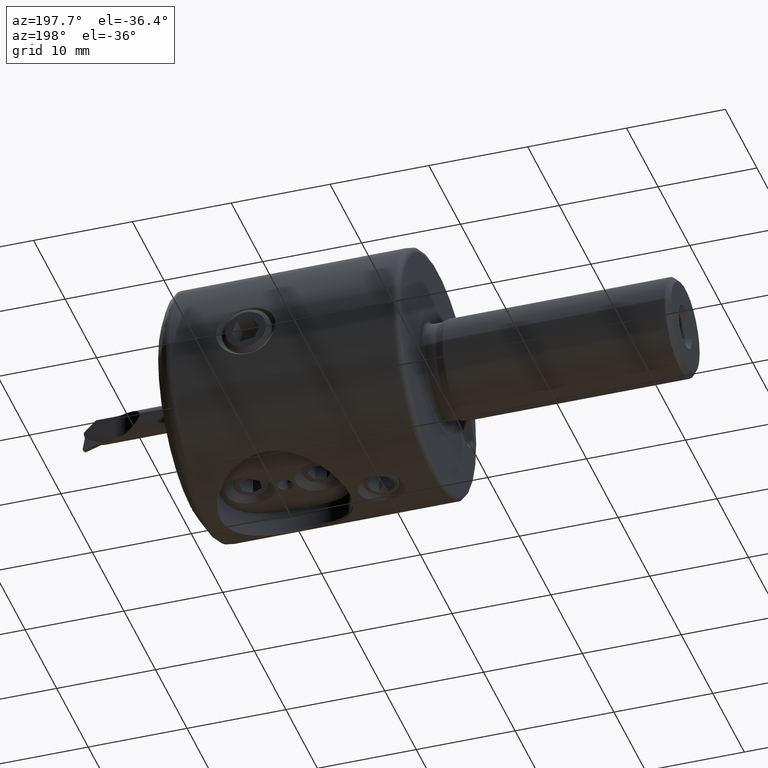
[diagram: clean part render]
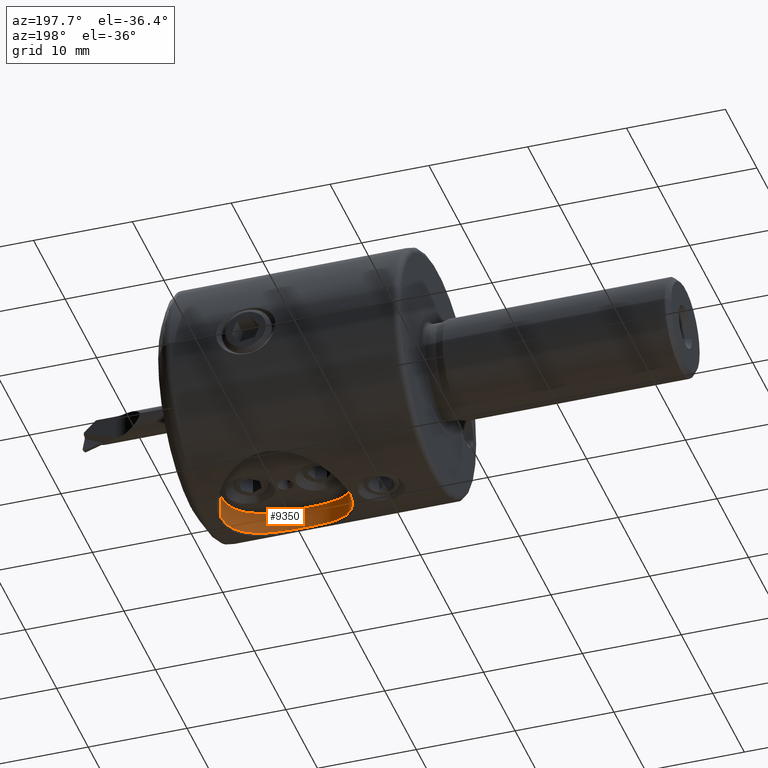
[diagram: same view with one face highlighted and labeled with its STEP entity id]
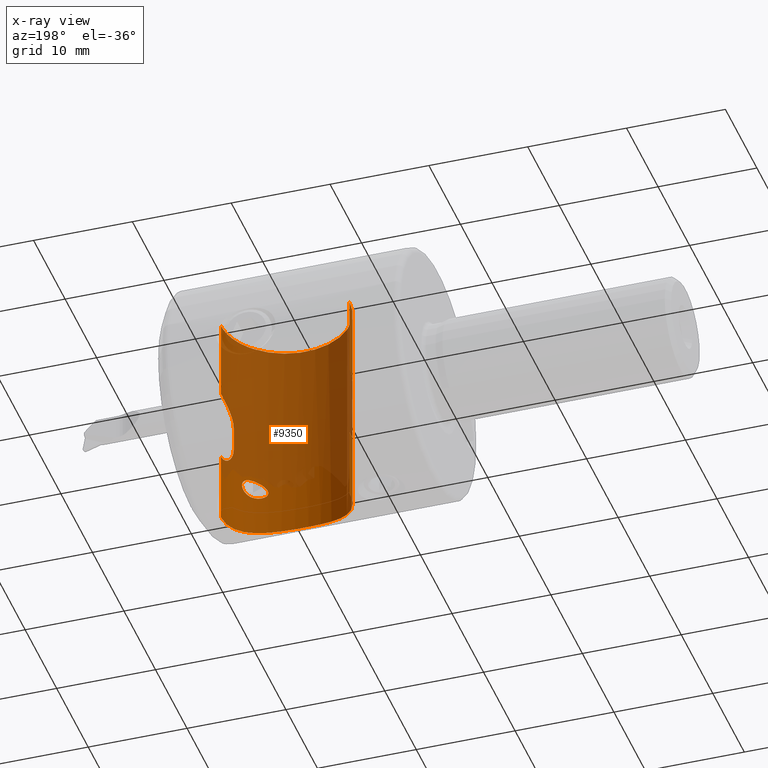
[diagram: x-ray of the same camera — body ghosted, the highlighted face saturated]
A machine part, auxiliary view. The second image highlights one B-rep face of the part: STEP entity #9350.
The next image is the same camera in x-ray: the body ghosted, the highlighted face saturated — about 74% of this face is hidden behind the body in this view.
In plain terms, the highlighted cylindrical surface (partial cylindrical patch) has radius 6.5 mm, axis along (-0, 0, 1).
Its self-contained STEP definition (entity closure, byte-faithful):
#1 = CARTESIAN_POINT ( 'NONE',  ( -2.999999999999332500, -1.624285699039790800E-013, -5.000000000001726600 ) ) ;
#21 = CARTESIAN_POINT ( 'NONE',  ( -3.116528701854586200, -1.262400151933591500, 2.182287452183708300 ) ) ;
#23 = CARTESIAN_POINT ( 'NONE',  ( -15.95611405147063700, -0.7616741143373342300, -12.25728273029258000 ) ) ;
#53 = DIRECTION ( 'NONE',  ( 1.000000000000000000, 0.0000000000000000000, 0.0000000000000000000 ) ) ;
#116 = VERTEX_POINT ( 'NONE', #31923 ) ;
#236 = ORIENTED_EDGE ( 'NONE', *, *, #18284, .T. ) ;
#274 = CARTESIAN_POINT ( 'NONE',  ( -4.063373307742120100, -3.562736337287559300, 10.65000000000000000 ) ) ;
#309 = CARTESIAN_POINT ( 'NONE',  ( -3.250477092169842900, -1.787026419644198500, 10.65999999998299500 ) ) ;
#425 = VECTOR ( 'NONE', #13473, 1000.000000000000000 ) ;
#493 = EDGE_CURVE ( 'NONE', #11500, #12852, #5514, .T. ) ;
#508 = CARTESIAN_POINT ( 'NONE',  ( -2.999999999999996000, 3.322274662969483100E-016, -12.28094585145538500 ) ) ;
#618 = CARTESIAN_POINT ( 'NONE',  ( -3.344572129925964500, -2.089385983422106900, -12.09829954007898700 ) ) ;
#682 = DIRECTION ( 'NONE',  ( -1.000000000000000000, 0.0000000000000000000, 1.067522139062648500E-015 ) ) ;
#722 = CARTESIAN_POINT ( 'NONE',  ( -3.911812628828305300, -3.320406138511264400, -11.81385689264799800 ) ) ;
#837 = CARTESIAN_POINT ( 'NONE',  ( -4.352132237329374900, -3.968640026810488700, -11.60779863320957800 ) ) ;
#932 = CARTESIAN_POINT ( 'NONE',  ( -4.809584240176566700, -4.500000000000001800, -7.200000000000002000 ) ) ;
#934 = CARTESIAN_POINT ( 'NONE',  ( -4.805331424839132600, -4.496080304318088100, -11.40985950853019500 ) ) ;
#1039 = CARTESIAN_POINT ( 'NONE',  ( -6.035545724475050600, -5.499777881097874600, -6.288025612350404400 ) ) ;
#1043 = CARTESIAN_POINT ( 'NONE',  ( -5.096182965593504500, -4.781061148114671000, -11.29087613920103500 ) ) ;
#1143 = CARTESIAN_POINT ( 'NONE',  ( -5.446834942798007600, -5.081651949940310300, -11.15600533333754500 ) ) ;
#1180 = CARTESIAN_POINT ( 'NONE',  ( -15.50697434361544900, -2.483439848316453700, -2.830833431758287900 ) ) ;
#1228 = LINE ( 'NONE', #29975, #28647 ) ;
#1243 = CARTESIAN_POINT ( 'NONE',  ( -3.277585544936718600, -1.883000726131409900, -4.152424607823904900 ) ) ;
#1247 = CARTESIAN_POINT ( 'NONE',  ( -6.094981374023174000, -5.536998207634828100, -10.93251428507666400 ) ) ;
#1281 = CARTESIAN_POINT ( 'NONE',  ( -16.00000000000066400, 1.632245906228572400E-013, -5.000000000001726600 ) ) ;
#1351 = CARTESIAN_POINT ( 'NONE',  ( -6.792961633265315800, -5.909540625722256000, -10.73150711643937800 ) ) ;
#1370 = AXIS2_PLACEMENT_3D ( 'NONE', #5457, #22937, #7993 ) ;
#1385 = CARTESIAN_POINT ( 'NONE',  ( -4.044348494311975600, -3.534325746200025300, -6.497609286052089300 ) ) ;
#1464 = CARTESIAN_POINT ( 'NONE',  ( -7.796589196595062900, -6.273065000757769700, -10.51873254537646200 ) ) ;
#1518 = ORIENTED_EDGE ( 'NONE', *, *, #18001, .F. ) ;
#1568 = CARTESIAN_POINT ( 'NONE',  ( -10.36374599731767000, -6.443271447133776400, -10.41316137627909200 ) ) ;
#1592 = B_SPLINE_CURVE_WITH_KNOTS ( 'NONE', 3,
 ( #6496, #19048, #24071, #9123, #26597, #11634, #29098, #14176, #31602, #16662, #1624, #19157, #4177, #21642, #6711, #24177 ),
 .UNSPECIFIED., .F., .F.,
 ( 4, 2, 2, 2, 2, 2, 2, 4 ),
 ( 0.003947562745264674600, 0.004440265160023260800, 0.004932967574781846200, 0.005425669989540431500, 0.005918372404299017700, 0.006411074819057602200, 0.006903777233816186700, 0.007889182063333357400 ),
 .UNSPECIFIED. ) ;
#1624 = CARTESIAN_POINT ( 'NONE',  ( -15.69011094720879000, -1.985354908063675000, 1.527972617256810200 ) ) ;
#1669 = CARTESIAN_POINT ( 'NONE',  ( -11.81456122424142500, -6.074173036993645500, -10.63725469060992900 ) ) ;
#1695 = ORIENTED_EDGE ( 'NONE', *, *, #15640, .F. ) ;
#1718 = LINE ( 'NONE', #9313, #14319 ) ;
#1774 = CARTESIAN_POINT ( 'NONE',  ( -12.67258692447382300, -5.673214561951979800, -10.86094449341876500 ) ) ;
#1796 = AXIS2_PLACEMENT_3D ( 'NONE', #26485, #11542, #29003 ) ;
#1800 = VERTEX_POINT ( 'NONE', #3254 ) ;
#1885 = CARTESIAN_POINT ( 'NONE',  ( -13.40055057826820400, -5.199660570498410000, -11.10033025398185700 ) ) ;
#1916 = DIRECTION ( 'NONE',  ( 1.000000000000000000, 0.0000000000000000000, 0.0000000000000000000 ) ) ;
#1957 = EDGE_CURVE ( 'NONE', #31138, #16425, #21854, .T. ) ;
#1974 = FACE_BOUND ( 'NONE', #7135, .T. ) ;
#2000 = CARTESIAN_POINT ( 'NONE',  ( -13.88822948587134800, -4.795185051643671600, -11.28471575624869800 ) ) ;
#2100 = VECTOR ( 'NONE', #15162, 1000.000000000000000 ) ;
#2101 = CARTESIAN_POINT ( 'NONE',  ( -14.07150176568465500, -4.620811605168520400, -11.35875586983820700 ) ) ;
#2129 = CARTESIAN_POINT ( 'NONE',  ( -4.809584240176567600, -4.500000000000001800, -5.199999999999999300 ) ) ;
#2207 = CARTESIAN_POINT ( 'NONE',  ( -14.54495976811823600, -4.098671023567086500, -11.56157413349791200 ) ) ;
#2326 = CARTESIAN_POINT ( 'NONE',  ( -15.08341066381631500, -3.328384252732887300, -11.81155376741042900 ) ) ;
#2347 = ORIENTED_EDGE ( 'NONE', *, *, #8774, .F. ) ;
#2351 = LINE ( 'NONE', #20056, #14929 ) ;
#2437 = CARTESIAN_POINT ( 'NONE',  ( -15.62877200068969700, -2.169859363992586100, -12.08441085817721300 ) ) ;
#2533 = DIRECTION ( 'NONE',  ( -9.925724861851714300E-016, -6.123031769111788900E-017, -1.000000000000000000 ) ) ;
#2539 = CARTESIAN_POINT ( 'NONE',  ( -3.030763413517967300, -0.6521696272657480100, 2.419074221632962400 ) ) ;
#2541 = CARTESIAN_POINT ( 'NONE',  ( -15.98623363150083200, -0.4367269215663200400, -12.27350890180012800 ) ) ;
#2583 = CARTESIAN_POINT ( 'NONE',  ( -3.720990100054861300, -2.975406623696370500, 10.65999999998299500 ) ) ;
#2629 = EDGE_CURVE ( 'NONE', #10092, #24005, #32394, .T. ) ;
#2661 = CARTESIAN_POINT ( 'NONE',  ( -4.865647832140092000, -4.557716531801025500, 10.65999999998299700 ) ) ;
#2727 = ORIENTED_EDGE ( 'NONE', *, *, #32241, .F. ) ;
#2873 = CIRCLE ( 'NONE', #30170, 6.500000000000005300 ) ;
#3026 = CARTESIAN_POINT ( 'NONE',  ( -2.999999999999996900, -0.4313810048449278600, -12.28094585145538200 ) ) ;
#3119 = ORIENTED_EDGE ( 'NONE', *, *, #23669, .F. ) ;
#3141 = CARTESIAN_POINT ( 'NONE',  ( -3.464002554052907800, -2.414234203063705400, -12.03666502309122100 ) ) ;
#3236 = ORIENTED_EDGE ( 'NONE', *, *, #21431, .F. ) ;
#3245 = CARTESIAN_POINT ( 'NONE',  ( -3.966635497474138000, -3.410652243931646200, -11.78750018303441900 ) ) ;
#3254 = CARTESIAN_POINT ( 'NONE',  ( -3.098008853464976100, -1.124504050542915400, 10.64999999998299400 ) ) ;
#3346 = LINE ( 'NONE', #10014, #29159 ) ;
#3356 = CARTESIAN_POINT ( 'NONE',  ( -4.449380803756169700, -4.091969304639093300, -11.56406400584525300 ) ) ;
#3459 = CARTESIAN_POINT ( 'NONE',  ( -4.927804241349996900, -4.623222434806711700, -7.200000000000001100 ) ) ;
#3462 = CARTESIAN_POINT ( 'NONE',  ( -4.914659352483808700, -4.607045040868206900, -11.36445586312327000 ) ) ;
#3526 = ORIENTED_EDGE ( 'NONE', *, *, #11530, .F. ) ;
#3569 = CARTESIAN_POINT ( 'NONE',  ( -6.018267648258704300, -5.488977167315265000, -6.031644793089942200 ) ) ;
#3574 = CARTESIAN_POINT ( 'NONE',  ( -5.144080232588685900, -4.824523624948779100, -11.27193404044636600 ) ) ;
#3677 = CARTESIAN_POINT ( 'NONE',  ( -5.579908548186864400, -5.185084076566168300, -11.10731919654394600 ) ) ;
#3683 = CARTESIAN_POINT ( 'NONE',  ( -3.001730999719981700, -0.1499999999999830400, 10.65999999998299500 ) ) ;
#3712 = CARTESIAN_POINT ( 'NONE',  ( -15.55288828792060200, -2.370039776153201000, -3.312203962949840100 ) ) ;
#3782 = CARTESIAN_POINT ( 'NONE',  ( -3.370843240822885000, -2.166228305410142300, -3.758486932351332100 ) ) ;
#3789 = CARTESIAN_POINT ( 'NONE',  ( -6.183991560578137500, -5.590599742547397900, -10.90459778309936700 ) ) ;
#3799 = CARTESIAN_POINT ( 'NONE',  ( -2.999999999999333900, 1.624285703175693900E-013, 2.500000000001722600 ) ) ;
#3900 = CARTESIAN_POINT ( 'NONE',  ( -6.938703919496710200, -5.974318002164966200, -10.69484146419339900 ) ) ;
#3918 = EDGE_CURVE ( 'NONE', #5180, #7849, #12056, .T. ) ;
#3937 = CARTESIAN_POINT ( 'NONE',  ( -4.187575127788568000, -3.747443542530989500, -6.871472370176610100 ) ) ;
#3950 = ORIENTED_EDGE ( 'NONE', *, *, #21852, .T. ) ;
#3955 = CARTESIAN_POINT ( 'NONE',  ( -3.589855370059583000, -2.705585048226464300, 10.65999999998299500 ) ) ;
#4015 = CARTESIAN_POINT ( 'NONE',  ( -8.108642767875888800, -6.350208685080360700, -10.47137429264301500 ) ) ;
#4051 = CARTESIAN_POINT ( 'NONE',  ( -15.50000000000000000, -2.499999999999999600, -2.500000000000001800 ) ) ;
#4117 = CARTESIAN_POINT ( 'NONE',  ( -10.68635552414992200, -6.391767334671354400, -10.44552922976552100 ) ) ;
#4131 = VERTEX_POINT ( 'NONE', #28939 ) ;
#4135 = AXIS2_PLACEMENT_3D ( 'NONE', #19632, #4662, #22130 ) ;
#4177 = CARTESIAN_POINT ( 'NONE',  ( -15.60055710650310700, -2.244478811630496100, 1.112975719491136900 ) ) ;
#4223 = CARTESIAN_POINT ( 'NONE',  ( -11.96194284640381200, -6.015955428459867500, -10.67098555948073200 ) ) ;
#4309 = CARTESIAN_POINT ( 'NONE',  ( -4.660283700361492100, -4.339025943574615200, 10.65999999998299700 ) ) ;
#4336 = CARTESIAN_POINT ( 'NONE',  ( -12.81051825495543600, -5.594055670404070000, -10.90282440673126300 ) ) ;
#4347 = CIRCLE ( 'NONE', #28682, 6.500000000000001800 ) ;
#4448 = CARTESIAN_POINT ( 'NONE',  ( -13.45618231761912400, -5.157443238110166900, -11.12042000143975800 ) ) ;
#4545 = CARTESIAN_POINT ( 'NONE',  ( -4.865647832140092000, -4.557716531801025500, 10.64999999998299700 ) ) ;
#4548 = CARTESIAN_POINT ( 'NONE',  ( -13.92817583527565100, -4.758304278491857900, -11.30063861865027900 ) ) ;
#4609 = VERTEX_POINT ( 'NONE', #28952 ) ;
#4661 = CARTESIAN_POINT ( 'NONE',  ( -14.10673034295876800, -4.585656040235281900, -11.37328475492604000 ) ) ;
#4662 = DIRECTION ( 'NONE',  ( 0.0000000000000000000, 0.0000000000000000000, -1.000000000000000000 ) ) ;
#4773 = CARTESIAN_POINT ( 'NONE',  ( -14.62836026641769900, -3.994344778068081000, -11.59892080081566900 ) ) ;
#4811 = ORIENTED_EDGE ( 'NONE', *, *, #23754, .T. ) ;
#4871 = CARTESIAN_POINT ( 'NONE',  ( -15.16411108523475400, -3.189142127879028600, -11.85071961078904900 ) ) ;
#4980 = CARTESIAN_POINT ( 'NONE',  ( -15.72571720247303500, -1.869007679426866400, -12.13497683513703500 ) ) ;
#5067 = CARTESIAN_POINT ( 'NONE',  ( -3.000000000000004000, -0.1647745027872763700, -4.999999999999984900 ) ) ;
#5084 = CARTESIAN_POINT ( 'NONE',  ( -2.999999999999988000, -0.1650229603828572400, 2.500000000000022200 ) ) ;
#5088 = CARTESIAN_POINT ( 'NONE',  ( -16.00000000000000400, -0.1090886344360033800, -12.28094508107169100 ) ) ;
#5180 = VERTEX_POINT ( 'NONE', #28707 ) ;
#5324 = VERTEX_POINT ( 'NONE', #4309 ) ;
#5457 = CARTESIAN_POINT ( 'NONE',  ( -9.500000000000000000, 0.0000000000000000000, 10.65000000000000000 ) ) ;
#5514 = CIRCLE ( 'NONE', #14099, 6.500000000000001800 ) ;
#5568 = CARTESIAN_POINT ( 'NONE',  ( -3.042602922091994300, -0.8628033674173384300, -12.25774661166820700 ) ) ;
#5684 = CARTESIAN_POINT ( 'NONE',  ( -3.526159079599480200, -2.562010861657657600, -12.00501527491564800 ) ) ;
#5692 = ORIENTED_EDGE ( 'NONE', *, *, #493, .F. ) ;
#5792 = CARTESIAN_POINT ( 'NONE',  ( -4.035736901382564100, -3.520886417715485700, -11.75449981293096100 ) ) ;
#5901 = CARTESIAN_POINT ( 'NONE',  ( -4.499743265202657700, -4.153021165910912400, -11.54173702587281100 ) ) ;
#5962 = LINE ( 'NONE', #3683, #25906 ) ;
#6004 = CARTESIAN_POINT ( 'NONE',  ( -5.292690791515168400, -4.957361013471163400, -7.096878718219787900 ) ) ;
#6005 = CARTESIAN_POINT ( 'NONE',  ( -9.500000000000000000, 0.0000000000000000000, 10.65000000000000000 ) ) ;
#6008 = CARTESIAN_POINT ( 'NONE',  ( -4.938384592756229100, -4.630530399327077400, -11.35470400773463400 ) ) ;
#6111 = CARTESIAN_POINT ( 'NONE',  ( -5.914893170217085000, -5.422210178278303900, -5.806856398983613900 ) ) ;
#6115 = CARTESIAN_POINT ( 'NONE',  ( -5.173880522558870400, -4.851301507294743400, -11.26020345822797000 ) ) ;
#6220 = CARTESIAN_POINT ( 'NONE',  ( -5.639368069512980400, -5.229312436039447400, -11.08608768333181700 ) ) ;
#6261 = CARTESIAN_POINT ( 'NONE',  ( -15.62885723142677300, -2.167088224114754000, -3.757081157740046700 ) ) ;
#6329 = CARTESIAN_POINT ( 'NONE',  ( -3.470730068371347300, -2.432248481100137500, -3.163149815898592500 ) ) ;
#6335 = CARTESIAN_POINT ( 'NONE',  ( -6.299114300690282800, -5.657667775335655200, -10.86928485045123500 ) ) ;
#6434 = CARTESIAN_POINT ( 'NONE',  ( -7.086414935261567300, -6.035515083269885400, -10.65969936007340600 ) ) ;
#6470 = CARTESIAN_POINT ( 'NONE',  ( -4.419671080206459400, -4.057216846587910400, -7.104255838954295600 ) ) ;
#6496 = CARTESIAN_POINT ( 'NONE',  ( -16.00000000000066400, -1.616325491851009300E-013, 2.500000000001722600 ) ) ;
#6539 = CARTESIAN_POINT ( 'NONE',  ( -8.319252544026781500, -6.392091371629243600, -10.44530106691694200 ) ) ;
#6610 = B_SPLINE_CURVE_WITH_KNOTS ( 'NONE', 3,
 ( #1, #5067, #22538, #7595, #25076, #13101, #13793, #31203, #16282, #1243, #18780, #3782, #21257, #6329, #23809, #8845 ),
 .UNSPECIFIED., .F., .F.,
 ( 4, 2, 2, 2, 2, 2, 2, 4 ),
 ( 0.003947562745264673700, 0.004440265160023258200, 0.004932967574781842700, 0.005425669989540427200, 0.005918372404299012500, 0.006411074819057598800, 0.006903777233816185000, 0.007889182063333354000 ),
 .UNSPECIFIED. ) ;
#6645 = CARTESIAN_POINT ( 'NONE',  ( -10.89717589127115700, -6.348282482067307200, -10.47254765431045900 ) ) ;
#6711 = CARTESIAN_POINT ( 'NONE',  ( -15.49999999999999800, -2.499999999999999600, 0.3335498922231237000 ) ) ;
#6752 = CARTESIAN_POINT ( 'NONE',  ( -12.10685096633893700, -5.954585906831853000, -10.70607490192754000 ) ) ;
#6858 = CARTESIAN_POINT ( 'NONE',  ( -12.90094710994034200, -5.539333201825622900, -10.93127766757757200 ) ) ;
#6965 = CARTESIAN_POINT ( 'NONE',  ( -13.57968135356124500, -5.060578139231776800, -11.16582382285835900 ) ) ;
#7014 = LINE ( 'NONE', #23643, #12890 ) ;
#7017 = DIRECTION ( 'NONE',  ( -9.925724861851712300E-016, -6.123031769111787700E-017, -1.000000000000000000 ) ) ;
#7076 = VECTOR ( 'NONE', #17523, 1000.000000000000000 ) ;
#7078 = CARTESIAN_POINT ( 'NONE',  ( -13.97290145671180800, -4.716274006354517200, -11.31861265537788000 ) ) ;
#7135 = EDGE_LOOP ( 'NONE', ( #8884, #31718 ) ) ;
#7190 = CARTESIAN_POINT ( 'NONE',  ( -14.15670517803739300, -4.535027034414798500, -11.39402268211217300 ) ) ;
#7260 = EDGE_CURVE ( 'NONE', #9404, #11700, #6610, .T. ) ;
#7287 = CARTESIAN_POINT ( 'NONE',  ( -14.72030791988131200, -3.872856165916818600, -11.64078498743010400 ) ) ;
#7400 = CARTESIAN_POINT ( 'NONE',  ( -15.22643469627718600, -3.075485643556795900, -11.88127986545745100 ) ) ;
#7507 = CARTESIAN_POINT ( 'NONE',  ( -3.466744612179562900, -2.418893067168527400, 0.6525952569388219200 ) ) ;
#7511 = CARTESIAN_POINT ( 'NONE',  ( -15.77078481921659400, -1.711773716122594800, -12.15864442491129100 ) ) ;
#7595 = CARTESIAN_POINT ( 'NONE',  ( -3.030944780036994400, -0.6537274119441877100, -4.918588928557635900 ) ) ;
#7813 = VERTEX_POINT ( 'NONE', #21203 ) ;
#7849 = VERTEX_POINT ( 'NONE', #13845 ) ;
#7893 = CYLINDRICAL_SURFACE ( 'NONE', #18008, 6.500000000000001800 ) ;
#7906 = DIRECTION ( 'NONE',  ( -9.925724861851714300E-016, -6.123031769111788900E-017, -1.000000000000000000 ) ) ;
#7953 = DIRECTION ( 'NONE',  ( -9.925724861851712300E-016, -6.123031769111787700E-017, -1.000000000000000000 ) ) ;
#7963 = EDGE_CURVE ( 'NONE', #11821, #28441, #29048, .T. ) ;
#7993 = DIRECTION ( 'NONE',  ( 1.000000000000000000, 0.0000000000000000000, 0.0000000000000000000 ) ) ;
#8102 = CARTESIAN_POINT ( 'NONE',  ( -3.151507849580861300, -1.396235800626939500, -12.19975207486158000 ) ) ;
#8188 = VERTEX_POINT ( 'NONE', #13993 ) ;
#8219 = CARTESIAN_POINT ( 'NONE',  ( -3.578394704127897600, -2.681302491969118900, -11.97853720762963500 ) ) ;
#8236 = ORIENTED_EDGE ( 'NONE', *, *, #18320, .F. ) ;
#8306 = CIRCLE ( 'NONE', #28889, 6.500000000000001800 ) ;
#8332 = CARTESIAN_POINT ( 'NONE',  ( -4.124802924624949800, -3.654857723317686400, -11.71253575368573900 ) ) ;
#8340 = LINE ( 'NONE', #3955, #14203 ) ;
#8382 = EDGE_CURVE ( 'NONE', #9609, #14868, #8737, .T. ) ;
#8435 = EDGE_CURVE ( 'NONE', #11700, #7813, #1228, .T. ) ;
#8441 = CARTESIAN_POINT ( 'NONE',  ( -4.539541047155819500, -4.200588683084972400, -11.52417477191244000 ) ) ;
#8518 = EDGE_CURVE ( 'NONE', #5324, #19772, #27076, .T. ) ;
#8536 = CARTESIAN_POINT ( 'NONE',  ( -5.593919403681638900, -5.195966877509484000, -6.920557231569722100 ) ) ;
#8538 = DIRECTION ( 'NONE',  ( 1.000000000000000000, 0.0000000000000000000, 0.0000000000000000000 ) ) ;
#8540 = CARTESIAN_POINT ( 'NONE',  ( -4.995297843535264600, -4.685993692711973900, -11.33146677234444000 ) ) ;
#8551 = CARTESIAN_POINT ( 'NONE',  ( -15.50000000000000400, -2.499999999999999600, 19.48843042998760200 ) ) ;
#8650 = CARTESIAN_POINT ( 'NONE',  ( -5.655043008586451600, -5.242987127196624200, -5.519872663680581900 ) ) ;
#8655 = CARTESIAN_POINT ( 'NONE',  ( -5.245732448325803400, -4.914458556753560400, -11.23221583714112600 ) ) ;
#8737 = CIRCLE ( 'NONE', #4135, 6.500000000000001800 ) ;
#8757 = CARTESIAN_POINT ( 'NONE',  ( -5.694355829954767900, -5.269568369629468000, -11.06663040469864600 ) ) ;
#8774 = EDGE_CURVE ( 'NONE', #15622, #116, #18862, .T. ) ;
#8791 = CARTESIAN_POINT ( 'NONE',  ( -15.72290431883199200, -1.881367811091120300, -4.154243505019918500 ) ) ;
#8845 = CARTESIAN_POINT ( 'NONE',  ( -3.499999999999996400, -2.499999999999999600, -2.500000000000002200 ) ) ;
#8853 = CARTESIAN_POINT ( 'NONE',  ( -6.434003906389156300, -5.731519262951039200, -10.82964277627262500 ) ) ;
#8883 = CARTESIAN_POINT ( 'NONE',  ( -4.420705700473871700, -4.058513340281217000, -5.295117234423498700 ) ) ;
#8884 = ORIENTED_EDGE ( 'NONE', *, *, #15302, .F. ) ;
#8958 = CARTESIAN_POINT ( 'NONE',  ( -7.234984979949338400, -6.092818404286546800, -10.62635921379069400 ) ) ;
#8995 = CARTESIAN_POINT ( 'NONE',  ( -4.705408127575340800, -4.391415715479571000, -7.200000000000002000 ) ) ;
#9069 = CARTESIAN_POINT ( 'NONE',  ( -8.588650954785327600, -6.437405624449266600, -10.41688258281444800 ) ) ;
#9092 = VERTEX_POINT ( 'NONE', #30264 ) ;
#9123 = CARTESIAN_POINT ( 'NONE',  ( -15.96905521996300200, -0.6537274119441869300, 2.418588928557633200 ) ) ;
#9176 = CARTESIAN_POINT ( 'NONE',  ( -11.15516139218155800, -6.287318893867211300, -10.51010841747574500 ) ) ;
#9272 = CARTESIAN_POINT ( 'NONE',  ( -12.25115537000998600, -5.889315861236490000, -10.74287809114618300 ) ) ;
#9313 = CARTESIAN_POINT ( 'NONE',  ( -3.000000000000000000, 0.0000000000000000000, 19.48843042998760200 ) ) ;
#9332 = DIRECTION ( 'NONE',  ( 1.000000000000000000, 0.0000000000000000000, 0.0000000000000000000 ) ) ;
#9350 = ADVANCED_FACE ( 'NONE', ( #1974, #21945 ), #7893, .F. ) ;
#9388 = CARTESIAN_POINT ( 'NONE',  ( -13.01015567782651600, -5.471157992014331800, -10.96634831220032600 ) ) ;
#9404 = VERTEX_POINT ( 'NONE', #15314 ) ;
#9500 = CARTESIAN_POINT ( 'NONE',  ( -13.64122565381266500, -5.010025376008775800, -11.18900580650366000 ) ) ;
#9552 = DIRECTION ( 'NONE',  ( 0.0000000000000000000, 0.0000000000000000000, -1.000000000000000000 ) ) ;
#9584 = CARTESIAN_POINT ( 'NONE',  ( -9.500000000000000000, 0.0000000000000000000, 10.65000000000000000 ) ) ;
#9599 = CARTESIAN_POINT ( 'NONE',  ( -13.98051902400822600, -4.709028513152008900, -11.32169055855950600 ) ) ;
#9609 = VERTEX_POINT ( 'NONE', #17237 ) ;
#9687 = EDGE_CURVE ( 'NONE', #19548, #1800, #2351, .T. ) ;
#9703 = CARTESIAN_POINT ( 'NONE',  ( -14.27329661031463100, -4.412232801274586600, -11.44316788580703900 ) ) ;
#9815 = CARTESIAN_POINT ( 'NONE',  ( -14.76845981338365400, -3.807104324829048800, -11.66291184675711200 ) ) ;
#9915 = CARTESIAN_POINT ( 'NONE',  ( -15.26526026077617400, -3.002085973355374600, -11.90043346838017200 ) ) ;
#9990 = ORIENTED_EDGE ( 'NONE', *, *, #8518, .F. ) ;
#10014 = CARTESIAN_POINT ( 'NONE',  ( -3.339589566642954500, -2.073485783068183900, 10.65999999998299500 ) ) ;
#10015 = CARTESIAN_POINT ( 'NONE',  ( -3.399255178248830900, -2.243982572675431400, 1.114139143692872500 ) ) ;
#10018 = CARTESIAN_POINT ( 'NONE',  ( -15.84824912961724200, -1.400320768804375300, -12.19961396714092000 ) ) ;
#10092 = VERTEX_POINT ( 'NONE', #21434 ) ;
#10116 = EDGE_CURVE ( 'NONE', #28982, #20541, #1592, .T. ) ;
#10138 = CARTESIAN_POINT ( 'NONE',  ( -3.720990100054861300, -2.975406623696370500, 10.64999999998299500 ) ) ;
#10211 = ORIENTED_EDGE ( 'NONE', *, *, #10116, .F. ) ;
#10288 = EDGE_CURVE ( 'NONE', #16889, #9609, #13762, .T. ) ;
#10341 = LINE ( 'NONE', #29691, #23621 ) ;
#10388 = ORIENTED_EDGE ( 'NONE', *, *, #7260, .F. ) ;
#10625 = CARTESIAN_POINT ( 'NONE',  ( -3.212769788290363400, -1.655529002605505400, -12.16728042334864100 ) ) ;
#10732 = CARTESIAN_POINT ( 'NONE',  ( -3.729507514202095900, -2.993911170300335800, -11.90293951881727000 ) ) ;
#10755 = VERTEX_POINT ( 'NONE', #2129 ) ;
#10831 = CARTESIAN_POINT ( 'NONE',  ( -4.167416243397796400, -3.716747094103721100, -11.69263060150714800 ) ) ;
#10938 = CARTESIAN_POINT ( 'NONE',  ( -4.651057642678838800, -4.329069582199797300, -11.47557976436049800 ) ) ;
#11044 = CARTESIAN_POINT ( 'NONE',  ( -5.763232641907315200, -5.318955408588832900, -6.777403255334010400 ) ) ;
#11049 = CARTESIAN_POINT ( 'NONE',  ( -5.021143067329983700, -4.710609973971033400, -11.32101896505073100 ) ) ;
#11132 = EDGE_CURVE ( 'NONE', #1800, #4131, #8306, .T. ) ;
#11148 = CARTESIAN_POINT ( 'NONE',  ( -5.294542280351558700, -4.958981265355710400, -5.303809729818440600 ) ) ;
#11152 = CARTESIAN_POINT ( 'NONE',  ( -5.341025983145992300, -4.995444847046695000, -11.19569186699677700 ) ) ;
#11184 = CARTESIAN_POINT ( 'NONE',  ( -15.50000000000000000, -2.499999999999999600, -2.500000000000001800 ) ) ;
#11255 = CARTESIAN_POINT ( 'NONE',  ( -5.832521776033528800, -5.366749851156540400, -11.01886158165440900 ) ) ;
#11295 = CARTESIAN_POINT ( 'NONE',  ( -15.88347129814541400, -1.262400151933590800, -4.682287452183713200 ) ) ;
#11329 = CARTESIAN_POINT ( 'NONE',  ( -3.001730999719981700, -0.1499999999999830400, 10.64999999998299500 ) ) ;
#11371 = CARTESIAN_POINT ( 'NONE',  ( -6.506964049427496700, -5.769961857634503300, -10.80878122786096000 ) ) ;
#11404 = CARTESIAN_POINT ( 'NONE',  ( -4.188935500389602500, -3.749359340745837900, -5.526513751165848200 ) ) ;
#11461 = LINE ( 'NONE', #309, #31355 ) ;
#11474 = CARTESIAN_POINT ( 'NONE',  ( -7.385563492821132700, -6.146706541040007500, -10.59462354214786800 ) ) ;
#11500 = VERTEX_POINT ( 'NONE', #4545 ) ;
#11530 = EDGE_CURVE ( 'NONE', #7813, #21460, #14022, .T. ) ;
#11542 = DIRECTION ( 'NONE',  ( -9.925724861851712300E-016, -6.123031769111787700E-017, -1.000000000000000000 ) ) ;
#11580 = CARTESIAN_POINT ( 'NONE',  ( -9.070011719857927100, -6.489314637645143200, -10.38393360758989000 ) ) ;
#11623 = ORIENTED_EDGE ( 'NONE', *, *, #1957, .F. ) ;
#11634 = CARTESIAN_POINT ( 'NONE',  ( -15.90550969490674800, -1.114974287195472600, 2.243674039610188000 ) ) ;
#11683 = CARTESIAN_POINT ( 'NONE',  ( -11.46822804974209500, -6.195084407618270300, -10.56581185075378600 ) ) ;
#11700 = VERTEX_POINT ( 'NONE', #13205 ) ;
#11703 = ORIENTED_EDGE ( 'NONE', *, *, #30906, .F. ) ;
#11794 = CARTESIAN_POINT ( 'NONE',  ( -12.39285620986974100, -5.821009915395230800, -10.78082400312432100 ) ) ;
#11821 = VERTEX_POINT ( 'NONE', #13525 ) ;
#11904 = CARTESIAN_POINT ( 'NONE',  ( -13.14569376668566600, -5.381418731745326600, -11.01152462884461700 ) ) ;
#12004 = CARTESIAN_POINT ( 'NONE',  ( -13.68145311608983800, -4.976573515872699400, -11.20425717265042400 ) ) ;
#12056 = LINE ( 'NONE', #13250, #17125 ) ;
#12116 = CARTESIAN_POINT ( 'NONE',  ( -13.98061881885878700, -4.708933893056455500, -11.32173084762617600 ) ) ;
#12161 = CARTESIAN_POINT ( 'NONE',  ( -16.00000000000000000, 7.960204194457799400E-016, 10.65000000000000000 ) ) ;
#12230 = CARTESIAN_POINT ( 'NONE',  ( -14.34082452996702100, -4.337875333287690300, -11.47211877108145300 ) ) ;
#12303 = B_SPLINE_CURVE_WITH_KNOTS ( 'NONE', 3,
 ( #932, #3459, #20952, #6004, #23492, #8536, #25993, #11044, #28502, #13566, #31001, #16074, #1039, #18575, #3569, #21050, #6111, #23595, #8650, #26093, #11148, #28615, #13682, #31100 ),
 .UNSPECIFIED., .F., .F.,
 ( 4, 2, 2, 2, 2, 2, 2, 2, 2, 2, 2, 4 ),
 ( 1.226634733346699300E-018, 0.0005048826388182340000, 0.001009765277636466900, 0.001262206597045583900, 0.001514647916454701000, 0.001767089235863818200, 0.002019530555272935100, 0.002271971874682052700, 0.002524413194091169400, 0.003029295832909402000, 0.003534178471727634600, 0.004039061110545865900 ),
 .UNSPECIFIED. ) ;
#12338 = CARTESIAN_POINT ( 'NONE',  ( -14.85886631755228700, -3.679011126677366800, -11.70487269775236800 ) ) ;
#12354 = AXIS2_PLACEMENT_3D ( 'NONE', #27470, #12538, #29952 ) ;
#12445 = CARTESIAN_POINT ( 'NONE',  ( -15.38621875862439100, -2.760877092405435100, -11.96061509966465200 ) ) ;
#12538 = DIRECTION ( 'NONE',  ( -9.925724861851712300E-016, -6.123031769111787700E-017, -1.000000000000000000 ) ) ;
#12551 = AXIS2_PLACEMENT_3D ( 'NONE', #30645, #15723, #682 ) ;
#12554 = DIRECTION ( 'NONE',  ( -9.925724861851714300E-016, -6.123031769111788900E-017, -1.000000000000000000 ) ) ;
#12555 = CARTESIAN_POINT ( 'NONE',  ( -3.309988433673915200, -1.985678509492014400, 1.527614239650657600 ) ) ;
#12559 = CARTESIAN_POINT ( 'NONE',  ( -15.89034533561624100, -1.190144882826053900, -12.22204392581324600 ) ) ;
#12616 = EDGE_CURVE ( 'NONE', #28011, #30802, #7014, .T. ) ;
#12649 = CIRCLE ( 'NONE', #22665, 6.500000000000012400 ) ;
#12852 = VERTEX_POINT ( 'NONE', #12161 ) ;
#12890 = VECTOR ( 'NONE', #28665, 1000.000000000000000 ) ;
#12962 = CARTESIAN_POINT ( 'NONE',  ( -16.00000000000066400, -1.616325491851009300E-013, 2.500000000001722600 ) ) ;
#13101 = CARTESIAN_POINT ( 'NONE',  ( -3.094490305093246600, -1.114974287195472600, -4.743674039610193700 ) ) ;
#13133 = CARTESIAN_POINT ( 'NONE',  ( -3.296559042344744800, -1.941148647546268700, -12.12332856726696800 ) ) ;
#13205 = CARTESIAN_POINT ( 'NONE',  ( -3.499999999999996400, -2.499999999999999600, -2.500000000000002200 ) ) ;
#13212 = ORIENTED_EDGE ( 'NONE', *, *, #11132, .F. ) ;
#13247 = CARTESIAN_POINT ( 'NONE',  ( -3.806702590909508000, -3.136407482510770600, -11.86500846408091200 ) ) ;
#13250 = CARTESIAN_POINT ( 'NONE',  ( -16.00000000000000400, 7.960204194457797400E-016, 19.48843042998760200 ) ) ;
#13355 = CARTESIAN_POINT ( 'NONE',  ( -4.258809016977672000, -3.844845504043081800, -11.65033343853220900 ) ) ;
#13446 = ORIENTED_EDGE ( 'NONE', *, *, #7963, .F. ) ;
#13464 = CARTESIAN_POINT ( 'NONE',  ( -4.704336027885829300, -4.387681303811055100, -11.45274627258086000 ) ) ;
#13473 = DIRECTION ( 'NONE',  ( 1.337641824460140200E-016, -0.0000000000000000000, -1.000000000000000000 ) ) ;
#13525 = CARTESIAN_POINT ( 'NONE',  ( -3.339589566642954500, -2.073485783068183900, 10.64999999998299500 ) ) ;
#13566 = CARTESIAN_POINT ( 'NONE',  ( -5.912943479041643100, -5.420919180033049400, -6.596070204511911500 ) ) ;
#13572 = CARTESIAN_POINT ( 'NONE',  ( -5.031266528443075500, -4.720222368583411500, -11.31693124663912500 ) ) ;
#13682 = CARTESIAN_POINT ( 'NONE',  ( -4.926467795795086400, -4.621829438074955800, -5.199999999999998400 ) ) ;
#13686 = CARTESIAN_POINT ( 'NONE',  ( -5.381374249684017600, -5.028615389877504800, -11.18048663699842900 ) ) ;
#13707 = CARTESIAN_POINT ( 'NONE',  ( -9.500000000000000000, 0.0000000000000000000, 10.65000000000000000 ) ) ;
#13762 = LINE ( 'NONE', #32459, #7076 ) ;
#13793 = CARTESIAN_POINT ( 'NONE',  ( -3.121440876297797700, -1.258152397897711600, -4.666399572594397900 ) ) ;
#13798 = CARTESIAN_POINT ( 'NONE',  ( -5.918100468451327400, -5.424086410953208300, -10.99012855910326400 ) ) ;
#13837 = CARTESIAN_POINT ( 'NONE',  ( -4.809584240176567600, -4.500000000000001800, -5.199999999999999300 ) ) ;
#13840 = CARTESIAN_POINT ( 'NONE',  ( -15.96923658648203500, -0.6521696272657466800, -4.919074221632966400 ) ) ;
#13845 = CARTESIAN_POINT ( 'NONE',  ( -16.00000000000066400, 1.632245906228572400E-013, -5.000000000001726600 ) ) ;
#13899 = CARTESIAN_POINT ( 'NONE',  ( -6.648603175837023600, -5.841420707852478200, -10.76954158082102400 ) ) ;
#13928 = CARTESIAN_POINT ( 'NONE',  ( -4.045092681292944200, -3.535485485068573700, -5.898713912749982100 ) ) ;
#13962 = B_SPLINE_CURVE_WITH_KNOTS ( 'NONE', 3,
 ( #11184, #28545, #1180, #18725, #3712, #21198, #6261, #23736, #8791, #26249, #11295, #28764, #13840, #31251, #16331, #1281 ),
 .UNSPECIFIED., .F., .F.,
 ( 4, 2, 2, 2, 2, 2, 2, 4 ),
 ( 0.0000000000000000000, 0.0004934453431580856200, 0.0009868906863161712500, 0.001480336029474256900, 0.001973781372632342500, 0.002960672058948509400, 0.003454117402106592400, 0.003947562745264675400 ),
 .UNSPECIFIED. ) ;
#13991 = CARTESIAN_POINT ( 'NONE',  ( -7.537064392471573400, -6.196744286106155500, -10.56481722326842400 ) ) ;
#13993 = CARTESIAN_POINT ( 'NONE',  ( -2.999999999999996000, 3.322274662969483100E-016, -12.28094585145538500 ) ) ;
#14022 = B_SPLINE_CURVE_WITH_KNOTS ( 'NONE', 3,
 ( #19949, #17459, #22452, #7507, #24982, #10015, #27487, #12555, #29970, #15046, #21, #17571, #2539, #20061, #5084, #22556 ),
 .UNSPECIFIED., .F., .F.,
 ( 4, 2, 2, 2, 2, 2, 2, 4 ),
 ( 4.455383009811167500E-019, 0.0004934453431580847600, 0.0009868906863161690800, 0.001480336029474253400, 0.001973781372632337700, 0.002960672058948505500, 0.003454117402106589400, 0.003947562745264673700 ),
 .UNSPECIFIED. ) ;
#14099 = AXIS2_PLACEMENT_3D ( 'NONE', #13707, #18711, #18911 ) ;
#14111 = CARTESIAN_POINT ( 'NONE',  ( -9.718370045334385300, -6.499891827624431100, -10.37714589625551700 ) ) ;
#14176 = CARTESIAN_POINT ( 'NONE',  ( -15.81954887685697200, -1.527175806485982800, 1.985942753595086200 ) ) ;
#14203 = VECTOR ( 'NONE', #26469, 1000.000000000000000 ) ;
#14216 = CARTESIAN_POINT ( 'NONE',  ( -11.61618473803024700, -6.146100842915696000, -10.59498144983145800 ) ) ;
#14228 = CARTESIAN_POINT ( 'NONE',  ( -9.499999999999994700, 6.123031769111788000E-019, 10.65999999998300000 ) ) ;
#14319 = VECTOR ( 'NONE', #26684, 1000.000000000000000 ) ;
#14320 = CARTESIAN_POINT ( 'NONE',  ( -12.53415377865398400, -5.748638686891045100, -10.82040572394661700 ) ) ;
#14425 = CARTESIAN_POINT ( 'NONE',  ( -13.20586528883993400, -5.340149287252136100, -11.03201846116530200 ) ) ;
#14535 = CARTESIAN_POINT ( 'NONE',  ( -13.76697076408873200, -4.903628397162844300, -11.23709217681665800 ) ) ;
#14556 = ORIENTED_EDGE ( 'NONE', *, *, #27889, .F. ) ;
#14570 = CARTESIAN_POINT ( 'NONE',  ( -4.660283700361503600, -4.339025943574604600, 10.65000000000000000 ) ) ;
#14626 = VECTOR ( 'NONE', #15866, 1000.000000000000000 ) ;
#14640 = CARTESIAN_POINT ( 'NONE',  ( -13.99258814439079200, -4.697525390874465900, -11.32657092944779400 ) ) ;
#14689 = EDGE_CURVE ( 'NONE', #10755, #9092, #23423, .T. ) ;
#14738 = CARTESIAN_POINT ( 'NONE',  ( -14.43018040554971600, -4.236536793694355700, -11.51083942977572500 ) ) ;
#14768 = DIRECTION ( 'NONE',  ( -9.925724861851714300E-016, -6.123031769111788900E-017, -1.000000000000000000 ) ) ;
#14847 = CARTESIAN_POINT ( 'NONE',  ( -14.94628013815894900, -3.548350730831581100, -11.74599563286958800 ) ) ;
#14868 = VERTEX_POINT ( 'NONE', #14570 ) ;
#14929 = VECTOR ( 'NONE', #2533, 1000.000000000000000 ) ;
#14950 = CARTESIAN_POINT ( 'NONE',  ( -2.999999999999986200, -7.748858760620519300E-032, 10.65999999998299300 ) ) ;
#14952 = CARTESIAN_POINT ( 'NONE',  ( -15.51082976250009600, -2.474387210622150100, -12.02384282263190900 ) ) ;
#15046 = CARTESIAN_POINT ( 'NONE',  ( -3.180305155269511200, -1.538762189968710300, 1.996616282805526500 ) ) ;
#15050 = CARTESIAN_POINT ( 'NONE',  ( -15.93582675029203000, -0.9223385723371060300, -12.24636984760858200 ) ) ;
#15081 = CARTESIAN_POINT ( 'NONE',  ( -9.500000000000001800, 0.0000000000000000000, 19.48843042998760200 ) ) ;
#15162 = DIRECTION ( 'NONE',  ( -9.925724861851714300E-016, -6.123031769111788900E-017, -1.000000000000000000 ) ) ;
#15302 = EDGE_CURVE ( 'NONE', #9092, #10755, #12303, .T. ) ;
#15314 = CARTESIAN_POINT ( 'NONE',  ( -2.999999999999332500, -1.624285699039790800E-013, -5.000000000001726600 ) ) ;
#15392 = EDGE_LOOP ( 'NONE', ( #236, #25923, #3119, #2727, #10211, #4811, #5692, #8236, #9990, #24519, #26084, #29530, #14556, #15553, #31773, #31659, #24635, #25057, #13446, #1695, #11703, #19685, #13212, #28812, #24912, #3950, #11623, #3236, #2347, #1518, #3526, #21982, #10388, #26580 ) ) ;
#15553 = ORIENTED_EDGE ( 'NONE', *, *, #2629, .T. ) ;
#15555 = VERTEX_POINT ( 'NONE', #26844 ) ;
#15622 = VERTEX_POINT ( 'NONE', #14950 ) ;
#15640 = EDGE_CURVE ( 'NONE', #4609, #11821, #3346, .T. ) ;
#15652 = CARTESIAN_POINT ( 'NONE',  ( -3.320056271379991500, -2.014690647153124300, -12.11106834936114900 ) ) ;
#15723 = DIRECTION ( 'NONE',  ( -9.925724861851712300E-016, -6.123031769111787700E-017, -1.000000000000000000 ) ) ;
#15763 = CARTESIAN_POINT ( 'NONE',  ( -3.871041859542780000, -3.251112578201600800, -11.83358866231233000 ) ) ;
#15864 = CARTESIAN_POINT ( 'NONE',  ( -4.321249589800083300, -3.928255382889458400, -11.62181644632231100 ) ) ;
#15866 = DIRECTION ( 'NONE',  ( -1.337641824460140200E-016, 0.0000000000000000000, 1.000000000000000000 ) ) ;
#15973 = CARTESIAN_POINT ( 'NONE',  ( -4.744843250137105200, -4.431649944779155500, -11.43547137543907500 ) ) ;
#16074 = CARTESIAN_POINT ( 'NONE',  ( -6.016768824180934900, -5.488025433026050900, -6.373242252064316400 ) ) ;
#16079 = CARTESIAN_POINT ( 'NONE',  ( -5.069950309781099000, -4.756606202121813200, -11.30137894095967300 ) ) ;
#16186 = CARTESIAN_POINT ( 'NONE',  ( -5.408897562642722300, -5.051062206381174300, -11.17015782912336200 ) ) ;
#16282 = CARTESIAN_POINT ( 'NONE',  ( -3.212890667925620800, -1.654203624628830700, -4.381438063667851600 ) ) ;
#16293 = CARTESIAN_POINT ( 'NONE',  ( -6.029702070964592800, -5.496532082044655700, -10.95338750543216100 ) ) ;
#16328 = CARTESIAN_POINT ( 'NONE',  ( -4.706585810718903100, -4.392643231829937100, -5.200000000000000200 ) ) ;
#16331 = CARTESIAN_POINT ( 'NONE',  ( -16.00000000000000700, -0.1650229603828558800, -5.000000000000027500 ) ) ;
#16398 = CARTESIAN_POINT ( 'NONE',  ( -6.744024148858387400, -5.886877290547139400, -10.74421716687080200 ) ) ;
#16425 = VERTEX_POINT ( 'NONE', #25162 ) ;
#16430 = CARTESIAN_POINT ( 'NONE',  ( -4.022590387457166000, -3.499711995973485000, -6.347989943798156200 ) ) ;
#16506 = CARTESIAN_POINT ( 'NONE',  ( -7.691948376042567800, -6.243709009394466500, -10.53654704426699200 ) ) ;
#16540 = CARTESIAN_POINT ( 'NONE',  ( -16.00000000000000400, 7.960204194457797400E-016, 19.48843042998760200 ) ) ;
#16608 = CARTESIAN_POINT ( 'NONE',  ( -10.25785419372991400, -6.456579635382395200, -10.40472520961892000 ) ) ;
#16662 = CARTESIAN_POINT ( 'NONE',  ( -15.72241445506328500, -1.883000726131409900, 1.652424607823899300 ) ) ;
#16708 = CARTESIAN_POINT ( 'NONE',  ( -11.76742877972584400, -6.091933132876523200, -10.62687715909170000 ) ) ;
#16721 = DIRECTION ( 'NONE',  ( -1.000000000000000000, 0.0000000000000000000, 1.067522139062648500E-015 ) ) ;
#16819 = CARTESIAN_POINT ( 'NONE',  ( -12.62726053981738500, -5.698325436072195800, -10.84751378304744300 ) ) ;
#16889 = VERTEX_POINT ( 'NONE', #27630 ) ;
#16928 = CARTESIAN_POINT ( 'NONE',  ( -13.33396954476299700, -5.249165360124116800, -11.07656199953303600 ) ) ;
#16962 = DIRECTION ( 'NONE',  ( 0.0000000000000000000, 0.0000000000000000000, -1.000000000000000000 ) ) ;
#17031 = LINE ( 'NONE', #2661, #2100 ) ;
#17032 = CARTESIAN_POINT ( 'NONE',  ( -13.87067771981476800, -4.811178507203206500, -11.27776093207039300 ) ) ;
#17125 = VECTOR ( 'NONE', #25673, 1000.000000000000000 ) ;
#17137 = CARTESIAN_POINT ( 'NONE',  ( -14.04509198907758700, -4.646868343844601200, -11.34791508790698500 ) ) ;
#17237 = CARTESIAN_POINT ( 'NONE',  ( -4.233553992480136900, -3.809796116576102100, 10.64999999998299500 ) ) ;
#17245 = CARTESIAN_POINT ( 'NONE',  ( -14.52666660098961800, -4.121071443460459200, -11.55343757972023500 ) ) ;
#17356 = CARTESIAN_POINT ( 'NONE',  ( -15.03033826380124100, -3.415841779502365200, -11.78603263707193000 ) ) ;
#17459 = CARTESIAN_POINT ( 'NONE',  ( -3.499999999999996000, -2.499999999999999600, 0.1669922581664304900 ) ) ;
#17462 = CARTESIAN_POINT ( 'NONE',  ( -15.57173774409521400, -2.320976172433443000, -12.05504468270345300 ) ) ;
#17523 = DIRECTION ( 'NONE',  ( -9.925724861851714300E-016, -6.123031769111788900E-017, -1.000000000000000000 ) ) ;
#17571 = CARTESIAN_POINT ( 'NONE',  ( -3.049072526780479500, -0.8115569756484687400, 2.370207468169486900 ) ) ;
#17575 = CARTESIAN_POINT ( 'NONE',  ( -15.97777008640338700, -0.5477689382810967400, -12.26894487160207200 ) ) ;
#17894 = VERTEX_POINT ( 'NONE', #4051 ) ;
#18001 = EDGE_CURVE ( 'NONE', #21460, #15622, #1718, .T. ) ;
#18008 = AXIS2_PLACEMENT_3D ( 'NONE', #15081, #20093, #53 ) ;
#18163 = CARTESIAN_POINT ( 'NONE',  ( -3.405432485054841400, -2.264056526906560200, -12.06674080892639000 ) ) ;
#18268 = CARTESIAN_POINT ( 'NONE',  ( -3.953904098604982000, -3.389919469180051600, -11.79360754145238100 ) ) ;
#18284 = EDGE_CURVE ( 'NONE', #8188, #5180, #24045, .T. ) ;
#18320 = EDGE_CURVE ( 'NONE', #19772, #11500, #17031, .T. ) ;
#18374 = CARTESIAN_POINT ( 'NONE',  ( -4.399362994194258500, -4.029666265824121600, -11.58643567593524900 ) ) ;
#18484 = CARTESIAN_POINT ( 'NONE',  ( -4.863070597992031500, -4.555468309453447200, -11.38574797585309800 ) ) ;
#18575 = CARTESIAN_POINT ( 'NONE',  ( -6.036240635305446700, -5.500215562330923900, -6.117095543948193100 ) ) ;
#18579 = CARTESIAN_POINT ( 'NONE',  ( -5.139095098878969200, -4.820025189694281000, -11.27390049496585400 ) ) ;
#18684 = CARTESIAN_POINT ( 'NONE',  ( -5.520559072808076500, -5.139932947478030200, -11.12878681908094200 ) ) ;
#18711 = DIRECTION ( 'NONE',  ( 0.0000000000000000000, 0.0000000000000000000, -1.000000000000000000 ) ) ;
#18725 = CARTESIAN_POINT ( 'NONE',  ( -15.53325538782043200, -2.418893067168526500, -3.152595256938826000 ) ) ;
#18780 = CARTESIAN_POINT ( 'NONE',  ( -3.309889052791211000, -1.985354908063675000, -4.027972617256815500 ) ) ;
#18788 = CARTESIAN_POINT ( 'NONE',  ( -6.159181062824628400, -5.575800756632229000, -10.91233013051361100 ) ) ;
#18829 = CARTESIAN_POINT ( 'NONE',  ( -3.589855370059583000, -2.705585048226464300, 10.65999999998299500 ) ) ;
#18862 = CIRCLE ( 'NONE', #1796, 6.500000000000008900 ) ;
#18885 = CARTESIAN_POINT ( 'NONE',  ( -6.866161540906428100, -5.942885310575357000, -10.71273494060190100 ) ) ;
#18911 = DIRECTION ( 'NONE',  ( 1.000000000000000000, 0.0000000000000000000, 0.0000000000000000000 ) ) ;
#18918 = CARTESIAN_POINT ( 'NONE',  ( -4.127102205667594800, -3.658901628006190800, -6.760046051879608200 ) ) ;
#18986 = CARTESIAN_POINT ( 'NONE',  ( -7.953217257988169000, -6.314882299764482500, -10.49322784582829900 ) ) ;
#19048 = CARTESIAN_POINT ( 'NONE',  ( -15.99999999999999300, -0.1647745027872762900, 2.499999999999979100 ) ) ;
#19095 = CARTESIAN_POINT ( 'NONE',  ( -10.57860016322247400, -6.410805392244264500, -10.43360151268110800 ) ) ;
#19157 = CARTESIAN_POINT ( 'NONE',  ( -15.62915675917711200, -2.166228305410142300, 1.258486932351327900 ) ) ;
#19208 = CARTESIAN_POINT ( 'NONE',  ( -11.91264776499008200, -6.035884567003491500, -10.65948511884283600 ) ) ;
#19315 = CARTESIAN_POINT ( 'NONE',  ( -12.74097736094538800, -5.634794872624841100, -10.88140811541546600 ) ) ;
#19416 = CARTESIAN_POINT ( 'NONE',  ( -13.41722273060234000, -5.187096043396804700, -11.10632812268168500 ) ) ;
#19468 = CARTESIAN_POINT ( 'NONE',  ( -3.052941176728746000, -0.8279085271215448300, 10.65999999998299500 ) ) ;
#19528 = CARTESIAN_POINT ( 'NONE',  ( -13.91605991817018900, -4.769567328312740900, -11.29579392040516300 ) ) ;
#19548 = VERTEX_POINT ( 'NONE', #31241 ) ;
#19620 = LINE ( 'NONE', #27945, #26270 ) ;
#19631 = CARTESIAN_POINT ( 'NONE',  ( -14.09592496431749200, -4.596477541921945700, -11.36882186317202300 ) ) ;
#19632 = CARTESIAN_POINT ( 'NONE',  ( -9.500000000000000000, 0.0000000000000000000, 10.65000000000000000 ) ) ;
#19685 = ORIENTED_EDGE ( 'NONE', *, *, #31584, .T. ) ;
#19735 = CARTESIAN_POINT ( 'NONE',  ( -14.57870174808992800, -4.056785892219158600, -11.57664697379623500 ) ) ;
#19772 = VERTEX_POINT ( 'NONE', #22053 ) ;
#19829 = EDGE_CURVE ( 'NONE', #5324, #14868, #10341, .T. ) ;
#19845 = CARTESIAN_POINT ( 'NONE',  ( -15.11161260344911700, -3.280638030399417400, -11.82519182581735400 ) ) ;
#19949 = CARTESIAN_POINT ( 'NONE',  ( -3.499999999999996000, -2.499999999999999600, -1.951563910473908000E-015 ) ) ;
#19952 = CARTESIAN_POINT ( 'NONE',  ( -15.67931706192697500, -2.019162750220856200, -12.11071464340558800 ) ) ;
#20056 = CARTESIAN_POINT ( 'NONE',  ( -3.098008853464976100, -1.124504050542915400, 10.65999999998299300 ) ) ;
#20061 = CARTESIAN_POINT ( 'NONE',  ( -3.006275134985195900, -0.3284579304783439300, 2.483819780177891200 ) ) ;
#20064 = CARTESIAN_POINT ( 'NONE',  ( -15.99725318832844000, -0.2183074281586032400, -12.27945756601353500 ) ) ;
#20093 = DIRECTION ( 'NONE',  ( -1.337641824460140200E-016, 0.0000000000000000000, 1.000000000000000000 ) ) ;
#20394 = CARTESIAN_POINT ( 'NONE',  ( -15.50000000000000000, -2.499999999999999600, -3.469446951953614200E-015 ) ) ;
#20541 = VERTEX_POINT ( 'NONE', #20394 ) ;
#20637 = CARTESIAN_POINT ( 'NONE',  ( -3.516509770518335000, -2.539405771212557700, -12.00992106553568200 ) ) ;
#20748 = CARTESIAN_POINT ( 'NONE',  ( -3.994004111423260300, -3.454660724561137800, -11.77440747204399500 ) ) ;
#20851 = CARTESIAN_POINT ( 'NONE',  ( -4.492685037574005900, -4.144512312448626700, -11.54486055142819400 ) ) ;
#20952 = CARTESIAN_POINT ( 'NONE',  ( -5.048122708220128100, -4.738952159773274900, -7.177994068069244400 ) ) ;
#20957 = CARTESIAN_POINT ( 'NONE',  ( -4.921147569991025400, -4.613486461115589200, -11.36178563669755800 ) ) ;
#21050 = CARTESIAN_POINT ( 'NONE',  ( -5.956883647172468000, -5.449555672052207800, -5.876328347181696700 ) ) ;
#21054 = CARTESIAN_POINT ( 'NONE',  ( -5.156082788825702100, -4.835333338072698200, -11.26720422312986100 ) ) ;
#21158 = CARTESIAN_POINT ( 'NONE',  ( -5.627079670972581700, -5.220213261159315700, -11.09046425139648700 ) ) ;
#21168 = DIRECTION ( 'NONE',  ( -9.925724861851714300E-016, -6.123031769111788900E-017, -1.000000000000000000 ) ) ;
#21198 = CARTESIAN_POINT ( 'NONE',  ( -15.60074482175116600, -2.243982572675431000, -3.614139143692876000 ) ) ;
#21203 = CARTESIAN_POINT ( 'NONE',  ( -3.499999999999996000, -2.499999999999999600, -1.951563910473908000E-015 ) ) ;
#21257 = CARTESIAN_POINT ( 'NONE',  ( -3.399442893496889000, -2.244478811630495700, -3.612975719491142300 ) ) ;
#21263 = CARTESIAN_POINT ( 'NONE',  ( -6.230179034570776200, -5.617738718179010600, -10.89034836254015600 ) ) ;
#21365 = CARTESIAN_POINT ( 'NONE',  ( -7.034778328872855400, -6.014598516542812400, -10.67176456180781200 ) ) ;
#21405 = CARTESIAN_POINT ( 'NONE',  ( -4.333460106162946500, -3.946144530138000900, -7.042888180064738700 ) ) ;
#21431 = EDGE_CURVE ( 'NONE', #116, #31138, #5962, .T. ) ;
#21434 = CARTESIAN_POINT ( 'NONE',  ( -4.063373307742105000, -3.562736337287569600, 10.65999999998299500 ) ) ;
#21460 = VERTEX_POINT ( 'NONE', #3799 ) ;
#21478 = CARTESIAN_POINT ( 'NONE',  ( -8.263019577336224900, -6.381428974517393500, -10.45195483703299300 ) ) ;
#21582 = CARTESIAN_POINT ( 'NONE',  ( -10.84824566046684400, -6.358873006405736400, -10.46598227871723800 ) ) ;
#21642 = CARTESIAN_POINT ( 'NONE',  ( -15.52926993162864900, -2.432248481100138400, 0.6631498158985883500 ) ) ;
#21690 = CARTESIAN_POINT ( 'NONE',  ( -12.06097825109892000, -5.974468402592228800, -10.69475689379940400 ) ) ;
#21799 = CARTESIAN_POINT ( 'NONE',  ( -12.88075092110650900, -5.551690796453887500, -10.92487581092646700 ) ) ;
#21852 = EDGE_CURVE ( 'NONE', #29410, #16425, #19620, .T. ) ;
#21854 = CIRCLE ( 'NONE', #32273, 6.500000000000001800 ) ;
#21914 = CARTESIAN_POINT ( 'NONE',  ( -13.51597296793444200, -5.111413792604094100, -11.14218345660573900 ) ) ;
#21945 = FACE_OUTER_BOUND ( 'NONE', #15392, .T. ) ;
#21966 = CARTESIAN_POINT ( 'NONE',  ( -9.499999999999994700, 6.123031769111788000E-019, 10.65999999998300000 ) ) ;
#21982 = ORIENTED_EDGE ( 'NONE', *, *, #8435, .F. ) ;
#22010 = LINE ( 'NONE', #30787, #14626 ) ;
#22024 = CARTESIAN_POINT ( 'NONE',  ( -13.95923540905273100, -4.729272978585879800, -11.31308956188630300 ) ) ;
#22053 = CARTESIAN_POINT ( 'NONE',  ( -4.865647832140092000, -4.557716531801025500, 10.65999999998299700 ) ) ;
#22129 = CARTESIAN_POINT ( 'NONE',  ( -14.12692541074974400, -4.565278415983152100, -11.38165134834895700 ) ) ;
#22130 = DIRECTION ( 'NONE',  ( 1.000000000000000000, 8.881784197001252300E-016, 0.0000000000000000000 ) ) ;
#22242 = CARTESIAN_POINT ( 'NONE',  ( -14.67522209987269300, -3.933140584572441400, -11.62018832755094900 ) ) ;
#22350 = CARTESIAN_POINT ( 'NONE',  ( -15.18952497840211500, -3.143560182013815900, -11.86314613413833600 ) ) ;
#22374 = EDGE_CURVE ( 'NONE', #30802, #24005, #4347, .T. ) ;
#22452 = CARTESIAN_POINT ( 'NONE',  ( -3.493025656384551400, -2.483439848316453700, 0.3308334317582848300 ) ) ;
#22455 = CARTESIAN_POINT ( 'NONE',  ( -15.74150273619906800, -1.815641786846994700, -12.14325304306722800 ) ) ;
#22538 = CARTESIAN_POINT ( 'NONE',  ( -3.006476714142348100, -0.3319492492570104700, -4.983292497952372300 ) ) ;
#22556 = CARTESIAN_POINT ( 'NONE',  ( -2.999999999999333900, 1.624285703175693900E-013, 2.500000000001722600 ) ) ;
#22560 = CARTESIAN_POINT ( 'NONE',  ( -16.00000000162080800, 2.005326375048253200E-013, -12.28094581412539700 ) ) ;
#22640 = LINE ( 'NONE', #16540, #28521 ) ;
#22665 = AXIS2_PLACEMENT_3D ( 'NONE', #22896, #7953, #25432 ) ;
#22895 = DIRECTION ( 'NONE',  ( -1.337641824460140200E-016, 0.0000000000000000000, 1.000000000000000000 ) ) ;
#22896 = CARTESIAN_POINT ( 'NONE',  ( -9.499999999999994700, 6.123031769111788000E-019, 10.65999999998300000 ) ) ;
#22937 = DIRECTION ( 'NONE',  ( 0.0000000000000000000, 0.0000000000000000000, -1.000000000000000000 ) ) ;
#23051 = CARTESIAN_POINT ( 'NONE',  ( -3.140741866726790100, -1.346418340879968800, -12.20547743083081300 ) ) ;
#23166 = CARTESIAN_POINT ( 'NONE',  ( -3.546830512345567200, -2.609683515057677800, -11.99452511603917800 ) ) ;
#23270 = CARTESIAN_POINT ( 'NONE',  ( -4.079549852794131400, -3.587706023201665300, -11.73378637593574000 ) ) ;
#23382 = CARTESIAN_POINT ( 'NONE',  ( -4.515544977624462500, -4.171973196019536100, -11.53475601177876300 ) ) ;
#23423 = B_SPLINE_CURVE_WITH_KNOTS ( 'NONE', 3,
 ( #13837, #16328, #23850, #8883, #26350, #11404, #28864, #13928, #31361, #16430, #1385, #18918, #3937, #21405, #6470, #23949, #8995, #26453 ),
 .UNSPECIFIED., .F., .F.,
 ( 4, 2, 2, 2, 2, 2, 2, 2, 4 ),
 ( 0.004039061110545865900, 0.004483966457440367500, 0.004928871804334869100, 0.005373777151229370800, 0.005818682498123871500, 0.006263587845018373100, 0.006708493191912874700, 0.007153398538807374600, 0.007598303885701874500 ),
 .UNSPECIFIED. ) ;
#23492 = CARTESIAN_POINT ( 'NONE',  ( -5.417023758423098900, -5.059788007333928300, -7.037214345956854800 ) ) ;
#23493 = DIRECTION ( 'NONE',  ( 0.0000000000000000000, 0.0000000000000000000, -1.000000000000000000 ) ) ;
#23497 = CARTESIAN_POINT ( 'NONE',  ( -4.965271170310671800, -4.656972580684715100, -11.34368309458996100 ) ) ;
#23595 = CARTESIAN_POINT ( 'NONE',  ( -5.770821682154674700, -5.325095855215384000, -5.617461721888348700 ) ) ;
#23599 = CARTESIAN_POINT ( 'NONE',  ( -5.213948598283964000, -4.886853289340646000, -11.24452606763352800 ) ) ;
#23621 = VECTOR ( 'NONE', #14768, 1000.000000000000000 ) ;
#23643 = CARTESIAN_POINT ( 'NONE',  ( -3.720990100054861300, -2.975406623696370500, 10.65999999998299500 ) ) ;
#23669 = EDGE_CURVE ( 'NONE', #17894, #7849, #13962, .T. ) ;
#23707 = CARTESIAN_POINT ( 'NONE',  ( -5.661432071515887900, -5.245529879318766600, -11.07826257584759600 ) ) ;
#23724 = CIRCLE ( 'NONE', #12354, 6.500000000000012400 ) ;
#23736 = CARTESIAN_POINT ( 'NONE',  ( -15.69001156632608300, -1.985678509492014000, -4.027614239650660900 ) ) ;
#23754 = EDGE_CURVE ( 'NONE', #28982, #12852, #22640, .T. ) ;
#23809 = CARTESIAN_POINT ( 'NONE',  ( -3.499999999999995600, -2.499999999999999100, -2.833549892223126600 ) ) ;
#23817 = CARTESIAN_POINT ( 'NONE',  ( -6.366957059199633800, -5.695315826322891800, -10.84915319461202900 ) ) ;
#23850 = CARTESIAN_POINT ( 'NONE',  ( -4.605538901478038100, -4.279604148691140300, -5.217580049636170600 ) ) ;
#23914 = CARTESIAN_POINT ( 'NONE',  ( -7.185615217865911400, -6.074245489386552100, -10.63721403051925500 ) ) ;
#23949 = CARTESIAN_POINT ( 'NONE',  ( -4.604399255247178000, -4.278299173912803800, -7.182132520050497100 ) ) ;
#24005 = VERTEX_POINT ( 'NONE', #274 ) ;
#24014 = CARTESIAN_POINT ( 'NONE',  ( -8.427078297536752400, -6.411071336245417000, -10.43342087620101600 ) ) ;
#24039 = DIRECTION ( 'NONE',  ( -9.925724861851714300E-016, -6.123031769111788900E-017, -1.000000000000000000 ) ) ;
#24045 = B_SPLINE_CURVE_WITH_KNOTS ( 'NONE', 3,
 ( #508, #3026, #5568, #23051, #8102, #25572, #10625, #28085, #13133, #30577, #15652, #618, #18163, #3141, #20637, #5684, #23166, #8219, #25670, #10732, #28192, #13247, #30682, #15763, #722, #18268, #3245, #20748, #5792, #23270, #8332, #25782, #10831, #28294, #13355, #30785, #15864, #837, #18374, #3356, #20851, #5901, #23382, #8441, #25895, #10938, #28401, #13464, #30893, #15973, #934, #18484, #3462, #20957, #6008, #23497, #8540, #25997, #11049, #28507, #13572, #31006, #16079, #1043, #18579, #3574, #21054, #6115, #23599, #8655, #26098, #11152, #28620, #13686, #31103, #16186, #1143, #18684, #3677, #21158, #6220, #23707, #8757, #26209, #11255, #28734, #13798, #31211, #16293, #1247, #18788, #3789, #21263, #6335, #23817, #8853, #26316, #11371, #28826, #13899, #31323, #16398, #1351, #18885, #3900, #21365, #6434, #23914, #8958, #26424, #11474, #28935, #13991, #31434, #16506, #1464, #18986, #4015, #21478, #6539, #24014, #9069, #26528, #11580, #29041, #14111, #31541, #16608, #1568, #19095, #4117, #21582, #6645, #24114, #9176, #26641, #11683, #29141, #14216, #31644, #16708, #1669, #19208, #4223, #21690, #6752, #24225, #9272, #26745, #11794, #29246, #14320, #31757, #16819, #1774, #19315, #4336, #21799, #6858, #24334, #9388, #26847, #11904, #29350, #14425, #31858, #16928, #1885, #19416, #4448, #21914, #6965, #24439, #9500, #26965, #12004, #29449, #14535, #31961, #17032, #2000, #19528, #4548, #22024, #7078, #24545, #9599, #27069, #12116, #29551, #14640, #32072, #17137, #2101, #19631, #4661, #22129, #7190, #24650, #9703, #27170, #12230, #29666, #14738, #32178, #17245, #2207, #19735, #4773, #22242, #7287, #24757, #9815, #27276, #12338, #29772, #14847, #32283, #17356, #2326, #19845, #4871, #22350, #7400, #24869, #9915, #27383, #12445, #29873, #14952, #32395, #17462, #2437, #19952, #4980, #22455, #7511, #24986, #10018, #27490, #12559, #29974, #15050, #23, #17575, #2541, #20064, #5088, #22560 ),
 .UNSPECIFIED., .F., .F.,
 ( 4, 2, 2, 1, 2, 2, 1, 1, 2, 2, 1, 1, 2, 2, 1, 2, 2, 1, 2, 2, 1, 2, 2, 1, 2, 2, 1, 1, 2, 2, 1, 1, 2, 2, 1, 2, 2, 1, 2, 2, 2, 1, 1, 2, 2, 2, 1, 1, 1, 2, 2, 1, 1, 2, 2, 1, 2, 2, 1, 2, 2, 1, 2, 2, 1, 2, 2, 2, 2, 2, 2, 1, 2, 2, 1, 2, 2, 2, 2, 2, 2, 1, 2, 2, 2, 2, 2, 2, 2, 2, 2, 2, 1, 2, 2, 1, 2, 2, 1, 2, 2, 1, 2, 2, 1, 2, 2, 2, 2, 2, 2, 2, 1, 1, 1, 2, 2, 1, 1, 2, 2, 1, 2, 2, 1, 2, 2, 1, 2, 2, 2, 2, 2, 2, 1, 1, 2, 2, 1, 2, 2, 1, 2, 2, 1, 2, 2, 4 ),
 ( 0.0000000000000000000, 0.03122956824581378500, 0.03513326427654052400, 0.03903696030726726300, 0.04684435236872071300, 0.04879620038408406800, 0.05074804839944743000, 0.05465174443017414100, 0.06245913649162759800, 0.06441098450699096800, 0.06636283252235435100, 0.07026652855308110300, 0.07807392061453463600, 0.08002576862989800600, 0.08197761664526138900, 0.08588131267598814200, 0.08783316069135149700, 0.08978500870671486700, 0.09368870473744161900, 0.09564055275280498900, 0.09759240076816835800, 0.1014960967988950800, 0.1034479448142584400, 0.1053997928296217700, 0.1093034888603484800, 0.1102794128680301300, 0.1112553368757117900, 0.1132071848910750400, 0.1171108809218015800, 0.1180868049294831900, 0.1190627289371648100, 0.1210145769525281100, 0.1249182729832546700, 0.1258941969909364000, 0.1268701209986180800, 0.1288219690139814100, 0.1293099310178222600, 0.1297978930216631100, 0.1307738170293446500, 0.1327256650447078700, 0.1332136270485486400, 0.1337015890523894600, 0.1346775130600709200, 0.1366293610754339100, 0.1405330571061599300, 0.1410210191100006400, 0.1415089811138413900, 0.1424849051215229000, 0.1444367531368858600, 0.1483404491676118500, 0.1493163731752933100, 0.1502922971829747700, 0.1522441451983377000, 0.1561478412290636700, 0.1580996892444266300, 0.1600515372597896000, 0.1639552332905155900, 0.1659070813058785600, 0.1678589293212415200, 0.1717626253519675100, 0.1737144733673304800, 0.1756663213826934500, 0.1795700174134194100, 0.1815218654287823500, 0.1834737134441452900, 0.1873774094748712500, 0.1912811055055972400, 0.1951848015363232000, 0.1990884975670491900, 0.2029921935977751500, 0.2068958896285011400, 0.2107995856592271000, 0.2186069777206790500, 0.2225106737514050400, 0.2264143697821310300, 0.2342217618435828700, 0.2498365459664866600, 0.2654513300893904800, 0.2732587221508423500, 0.2810661142122942700, 0.2849698102430202100, 0.2888735062737461400, 0.2966808983351979500, 0.3005845943659237700, 0.3044882903966496000, 0.3083919864273754800, 0.3122956824581013000, 0.3161993784888271200, 0.3201030745195529400, 0.3240067705502787700, 0.3279104665810046400, 0.3298623145963675600, 0.3318141626117304700, 0.3357178586424562300, 0.3376697066578192000, 0.3396215546731820600, 0.3435252507039080500, 0.3454770987192710100, 0.3474289467346339800, 0.3513326427653599700, 0.3532844907807230500, 0.3552363387960860200, 0.3591400348268120600, 0.3601159588344934900, 0.3610918828421748600, 0.3630437308575377700, 0.3669474268882636500, 0.3679233508959451300, 0.3688992749036266200, 0.3708511229189895800, 0.3709731134199497100, 0.3710951039209097700, 0.3713390849228298500, 0.3718270469266701200, 0.3728029709343503900, 0.3747548189497110200, 0.3757307429573913900, 0.3767066669650716600, 0.3786585149804322400, 0.3825622110111532300, 0.3845140590265137500, 0.3864659070418741700, 0.3903696030725952200, 0.3923214510879557400, 0.3942732991033163200, 0.3981769951340373100, 0.4001288431493977800, 0.4020806911647582500, 0.4059843871954792500, 0.4098880832262002900, 0.4137917792569212900, 0.4176954752876422800, 0.4215991713183632700, 0.4235510193337238000, 0.4255028673490843800, 0.4294065633798054300, 0.4372139554412474700, 0.4411176514719684600, 0.4450213475026895100, 0.4528287395641315000, 0.4567324355948525500, 0.4606361316255736500, 0.4684435236870158100, 0.4723472197177368500, 0.4762509157484579600, 0.4840583078099001700, 0.4918656998713424300, 0.4996730919327845900 ),
 .UNSPECIFIED. ) ;
#24071 = CARTESIAN_POINT ( 'NONE',  ( -15.99352328585764500, -0.3319492492570096900, 2.483292497952368300 ) ) ;
#24114 = CARTESIAN_POINT ( 'NONE',  ( -11.00017705855836400, -6.324733965650031200, -10.48708875423658400 ) ) ;
#24177 = CARTESIAN_POINT ( 'NONE',  ( -15.50000000000000000, -2.499999999999999600, -3.469446951953614200E-015 ) ) ;
#24225 = CARTESIAN_POINT ( 'NONE',  ( -12.20285039147172800, -5.911629643665433400, -10.73035345627135100 ) ) ;
#24334 = CARTESIAN_POINT ( 'NONE',  ( -12.94441434065021600, -5.512409946237885300, -10.94516540074044600 ) ) ;
#24439 = CARTESIAN_POINT ( 'NONE',  ( -13.63477392884781400, -5.015361178214090100, -11.18656685645034400 ) ) ;
#24487 = DIRECTION ( 'NONE',  ( -1.000000000000000000, 0.0000000000000000000, 1.067522139062649700E-015 ) ) ;
#24519 = ORIENTED_EDGE ( 'NONE', *, *, #19829, .T. ) ;
#24545 = CARTESIAN_POINT ( 'NONE',  ( -13.98012122604934000, -4.709406984264070700, -11.32152981092195200 ) ) ;
#24635 = ORIENTED_EDGE ( 'NONE', *, *, #29402, .F. ) ;
#24650 = CARTESIAN_POINT ( 'NONE',  ( -14.22265410751731300, -4.466706712173542600, -11.42163923296153200 ) ) ;
#24757 = CARTESIAN_POINT ( 'NONE',  ( -14.73702225074643800, -3.850235069519424500, -11.64844687476724300 ) ) ;
#24869 = CARTESIAN_POINT ( 'NONE',  ( -15.23982645434570700, -3.050432484074224100, -11.88787523711991100 ) ) ;
#24912 = ORIENTED_EDGE ( 'NONE', *, *, #26668, .F. ) ;
#24970 = CARTESIAN_POINT ( 'NONE',  ( -4.063373307742105000, -3.562736337287569600, 10.65999999998299500 ) ) ;
#24982 = CARTESIAN_POINT ( 'NONE',  ( -3.447111712079394200, -2.370039776153200600, 0.8122039629498373200 ) ) ;
#24986 = CARTESIAN_POINT ( 'NONE',  ( -15.81261531487989200, -1.555966140655061100, -12.18069057701687400 ) ) ;
#25057 = ORIENTED_EDGE ( 'NONE', *, *, #31774, .T. ) ;
#25076 = CARTESIAN_POINT ( 'NONE',  ( -3.048869488473182200, -0.8103315592392993400, -4.870781225931354500 ) ) ;
#25162 = CARTESIAN_POINT ( 'NONE',  ( -3.052941176728766900, -0.8279085271215420600, 10.65000000000000000 ) ) ;
#25432 = DIRECTION ( 'NONE',  ( -1.000000000000000000, 0.0000000000000000000, 1.067522139062648500E-015 ) ) ;
#25572 = CARTESIAN_POINT ( 'NONE',  ( -3.175198033384901000, -1.499902356151073600, -12.18718027701172000 ) ) ;
#25670 = CARTESIAN_POINT ( 'NONE',  ( -3.656002334882411600, -2.849114180247472600, -11.93946339734347400 ) ) ;
#25673 = DIRECTION ( 'NONE',  ( -1.337641824460140200E-016, 0.0000000000000000000, 1.000000000000000000 ) ) ;
#25771 = VECTOR ( 'NONE', #24039, 1000.000000000000000 ) ;
#25782 = CARTESIAN_POINT ( 'NONE',  ( -4.138236721442655000, -3.674527592415129700, -11.70624754905081500 ) ) ;
#25895 = CARTESIAN_POINT ( 'NONE',  ( -4.597614271427435300, -4.268641197113560700, -11.49871718114762100 ) ) ;
#25906 = VECTOR ( 'NONE', #21168, 1000.000000000000000 ) ;
#25923 = ORIENTED_EDGE ( 'NONE', *, *, #3918, .T. ) ;
#25986 = AXIS2_PLACEMENT_3D ( 'NONE', #14228, #31657, #16721 ) ;
#25993 = CARTESIAN_POINT ( 'NONE',  ( -5.651677846343034200, -5.238810316163047700, -6.876935593138867400 ) ) ;
#25997 = CARTESIAN_POINT ( 'NONE',  ( -5.022122649751390900, -4.711546384844648800, -11.32062238763935900 ) ) ;
#26084 = ORIENTED_EDGE ( 'NONE', *, *, #8382, .F. ) ;
#26093 = CARTESIAN_POINT ( 'NONE',  ( -5.416719866612457000, -5.059588089365779400, -5.362465382787796400 ) ) ;
#26098 = CARTESIAN_POINT ( 'NONE',  ( -5.305751244321384300, -4.965990193767336100, -11.20909875332197500 ) ) ;
#26209 = CARTESIAN_POINT ( 'NONE',  ( -5.769943655767048300, -5.323674017190190200, -11.04022710255943300 ) ) ;
#26249 = CARTESIAN_POINT ( 'NONE',  ( -15.81969484473048300, -1.538762189968709800, -4.496616282805530500 ) ) ;
#26270 = VECTOR ( 'NONE', #30425, 1000.000000000000000 ) ;
#26316 = CARTESIAN_POINT ( 'NONE',  ( -6.459295732529208000, -5.744984038077163300, -10.82235674269567800 ) ) ;
#26350 = CARTESIAN_POINT ( 'NONE',  ( -4.334450404322640600, -3.947429411611736800, -5.356370418049207800 ) ) ;
#26424 = CARTESIAN_POINT ( 'NONE',  ( -7.333208630956639800, -6.128437346641242700, -10.60542527643061700 ) ) ;
#26453 = CARTESIAN_POINT ( 'NONE',  ( -4.809584240176566700, -4.500000000000001800, -7.200000000000002000 ) ) ;
#26469 = DIRECTION ( 'NONE',  ( -9.925724861851714300E-016, -6.123031769111788900E-017, -1.000000000000000000 ) ) ;
#26485 = CARTESIAN_POINT ( 'NONE',  ( -9.499999999999994700, 6.123031769111788000E-019, 10.65999999998300000 ) ) ;
#26528 = CARTESIAN_POINT ( 'NONE',  ( -8.749550367162418900, -6.457425876107888200, -10.40419026748983500 ) ) ;
#26580 = ORIENTED_EDGE ( 'NONE', *, *, #30314, .F. ) ;
#26597 = CARTESIAN_POINT ( 'NONE',  ( -15.95113051152681500, -0.8103315592392993400, 2.370781225931351400 ) ) ;
#26641 = CARTESIAN_POINT ( 'NONE',  ( -11.31140886948692500, -6.243458000240763400, -10.53675212076480200 ) ) ;
#26668 = EDGE_CURVE ( 'NONE', #29410, #19548, #23724, .T. ) ;
#26684 = DIRECTION ( 'NONE',  ( -1.337641824460140200E-016, 0.0000000000000000000, 1.000000000000000000 ) ) ;
#26745 = CARTESIAN_POINT ( 'NONE',  ( -12.34830842002927300, -5.842947571879864900, -10.76869807630169300 ) ) ;
#26844 = CARTESIAN_POINT ( 'NONE',  ( -3.250477092169842900, -1.787026419644198500, 10.65999999998299500 ) ) ;
#26847 = CARTESIAN_POINT ( 'NONE',  ( -13.07745336594115300, -5.427230402501526100, -10.98858515880690900 ) ) ;
#26965 = CARTESIAN_POINT ( 'NONE',  ( -13.65693984472519600, -4.996994627912268800, -11.19495473197357600 ) ) ;
#27069 = CARTESIAN_POINT ( 'NONE',  ( -13.98126087001204900, -4.708322554485527600, -11.32199035433982800 ) ) ;
#27076 = CIRCLE ( 'NONE', #12551, 6.500000000000012400 ) ;
#27170 = CARTESIAN_POINT ( 'NONE',  ( -14.32023747767917100, -4.360716726003687400, -11.46326808768324700 ) ) ;
#27276 = CARTESIAN_POINT ( 'NONE',  ( -14.81482510879300200, -3.742656417362397300, -11.68432249174703400 ) ) ;
#27383 = CARTESIAN_POINT ( 'NONE',  ( -15.30280470353823800, -2.929609250417548600, -11.91901828059151700 ) ) ;
#27470 = CARTESIAN_POINT ( 'NONE',  ( -9.499999999999994700, 6.123031769111788000E-019, 10.65999999998300000 ) ) ;
#27487 = CARTESIAN_POINT ( 'NONE',  ( -3.371142768573221800, -2.167088224114754000, 1.257081157740043400 ) ) ;
#27490 = CARTESIAN_POINT ( 'NONE',  ( -15.87987033948598500, -1.245008340596477800, -12.21645551594393100 ) ) ;
#27630 = CARTESIAN_POINT ( 'NONE',  ( -4.233553992480136900, -3.809796116576102100, 10.65999999998299500 ) ) ;
#27849 = LINE ( 'NONE', #8551, #425 ) ;
#27889 = EDGE_CURVE ( 'NONE', #10092, #16889, #30696, .T. ) ;
#27945 = CARTESIAN_POINT ( 'NONE',  ( -3.052941176728746000, -0.8279085271215448300, 10.65999999998299500 ) ) ;
#28011 = VERTEX_POINT ( 'NONE', #2583 ) ;
#28085 = CARTESIAN_POINT ( 'NONE',  ( -3.256542964966292300, -1.811366567941120200, -12.14425409902071500 ) ) ;
#28192 = CARTESIAN_POINT ( 'NONE',  ( -3.794852814367211100, -3.114811562002589400, -11.87081848607984500 ) ) ;
#28294 = CARTESIAN_POINT ( 'NONE',  ( -4.211946302287135100, -3.780375255799508500, -11.67191591612286800 ) ) ;
#28401 = CARTESIAN_POINT ( 'NONE',  ( -4.697740212204643700, -4.380467300418205300, -11.45556712553624500 ) ) ;
#28441 = VERTEX_POINT ( 'NONE', #28711 ) ;
#28502 = CARTESIAN_POINT ( 'NONE',  ( -5.817132171465527100, -5.356288248269115600, -6.721281285805525300 ) ) ;
#28507 = CARTESIAN_POINT ( 'NONE',  ( -5.024619930286840800, -4.713913340507641400, -11.31961470620830200 ) ) ;
#28521 = VECTOR ( 'NONE', #31468, 1000.000000000000000 ) ;
#28545 = CARTESIAN_POINT ( 'NONE',  ( -15.50000000000000500, -2.499999999999999600, -2.666992258166434000 ) ) ;
#28615 = CARTESIAN_POINT ( 'NONE',  ( -5.047718421961328700, -4.738624122227577100, -5.221797909117576400 ) ) ;
#28620 = CARTESIAN_POINT ( 'NONE',  ( -5.375058705013708900, -5.023433415813938700, -11.18286418562943400 ) ) ;
#28647 = VECTOR ( 'NONE', #22895, 1000.000000000000000 ) ;
#28665 = DIRECTION ( 'NONE',  ( -9.925724861851714300E-016, -6.123031769111788900E-017, -1.000000000000000000 ) ) ;
#28682 = AXIS2_PLACEMENT_3D ( 'NONE', #31888, #16962, #1916 ) ;
#28707 = CARTESIAN_POINT ( 'NONE',  ( -16.00000000162080800, 2.005326375048253200E-013, -12.28094581412539700 ) ) ;
#28711 = CARTESIAN_POINT ( 'NONE',  ( -3.589855370059591900, -2.705585048226460700, 10.65000000000000000 ) ) ;
#28734 = CARTESIAN_POINT ( 'NONE',  ( -5.893509956876974000, -5.407756437830181900, -10.99833998136843100 ) ) ;
#28764 = CARTESIAN_POINT ( 'NONE',  ( -15.95092747321952600, -0.8115569756484677400, -4.870207468169491300 ) ) ;
#28812 = ORIENTED_EDGE ( 'NONE', *, *, #9687, .F. ) ;
#28826 = CARTESIAN_POINT ( 'NONE',  ( -6.578202445637841400, -5.806724283268474500, -10.78871533510172900 ) ) ;
#28864 = CARTESIAN_POINT ( 'NONE',  ( -4.128470431443812300, -3.660920862971631400, -5.636965580370471700 ) ) ;
#28889 = AXIS2_PLACEMENT_3D ( 'NONE', #6005, #23493, #8538 ) ;
#28935 = CARTESIAN_POINT ( 'NONE',  ( -7.486685459377709700, -6.180566932335058700, -10.57449170216577100 ) ) ;
#28939 = CARTESIAN_POINT ( 'NONE',  ( -3.250477092169861100, -1.787026419644193200, 10.65000000000000000 ) ) ;
#28952 = CARTESIAN_POINT ( 'NONE',  ( -3.339589566642954500, -2.073485783068183900, 10.65999999998299500 ) ) ;
#28982 = VERTEX_POINT ( 'NONE', #12962 ) ;
#29003 = DIRECTION ( 'NONE',  ( -1.000000000000000000, 0.0000000000000000000, 1.067522139062649100E-015 ) ) ;
#29041 = CARTESIAN_POINT ( 'NONE',  ( -9.288117858860399400, -6.500106553417746000, -10.37701172553652600 ) ) ;
#29048 = CIRCLE ( 'NONE', #1370, 6.500000000000001800 ) ;
#29098 = CARTESIAN_POINT ( 'NONE',  ( -15.87855912370220900, -1.258152397897711800, 2.166399572594396100 ) ) ;
#29141 = CARTESIAN_POINT ( 'NONE',  ( -11.51596121571229000, -6.179700137830718800, -10.57500808541489300 ) ) ;
#29159 = VECTOR ( 'NONE', #12554, 1000.000000000000000 ) ;
#29246 = CARTESIAN_POINT ( 'NONE',  ( -12.48679549460107900, -5.773372165341689000, -10.80694724716065200 ) ) ;
#29350 = CARTESIAN_POINT ( 'NONE',  ( -13.16444924136743000, -5.368653807670021600, -11.01788322707365000 ) ) ;
#29402 = EDGE_CURVE ( 'NONE', #29848, #28011, #2873, .T. ) ;
#29410 = VERTEX_POINT ( 'NONE', #19468 ) ;
#29449 = CARTESIAN_POINT ( 'NONE',  ( -13.70875651102987400, -4.953485779794476700, -11.21469677074320600 ) ) ;
#29530 = ORIENTED_EDGE ( 'NONE', *, *, #10288, .F. ) ;
#29551 = CARTESIAN_POINT ( 'NONE',  ( -13.98463055278657300, -4.705114498220265100, -11.32335227894793700 ) ) ;
#29666 = CARTESIAN_POINT ( 'NONE',  ( -14.37707302189256000, -4.297080785394193500, -11.48778279094500800 ) ) ;
#29691 = CARTESIAN_POINT ( 'NONE',  ( -4.660283700361492100, -4.339025943574615200, 10.65999999998299700 ) ) ;
#29772 = CARTESIAN_POINT ( 'NONE',  ( -14.91560980354169400, -3.594960574943120600, -11.73150813777314600 ) ) ;
#29848 = VERTEX_POINT ( 'NONE', #18829 ) ;
#29873 = CARTESIAN_POINT ( 'NONE',  ( -15.45072339304590900, -2.617165853904904500, -11.99323909986447300 ) ) ;
#29952 = DIRECTION ( 'NONE',  ( -1.000000000000000000, 0.0000000000000000000, 1.067522139062648500E-015 ) ) ;
#29970 = CARTESIAN_POINT ( 'NONE',  ( -3.277095681168010100, -1.881367811091120500, 1.654243505019912900 ) ) ;
#29974 = CARTESIAN_POINT ( 'NONE',  ( -15.90936689453775800, -1.083039409141080200, -12.23220754987175400 ) ) ;
#29975 = CARTESIAN_POINT ( 'NONE',  ( -3.499999999999999600, -2.499999999999999600, 19.48843042998760200 ) ) ;
#30170 = AXIS2_PLACEMENT_3D ( 'NONE', #21966, #7017, #24487 ) ;
#30264 = CARTESIAN_POINT ( 'NONE',  ( -4.809584240176566700, -4.500000000000001800, -7.200000000000002000 ) ) ;
#30314 = EDGE_CURVE ( 'NONE', #8188, #9404, #22010, .T. ) ;
#30425 = DIRECTION ( 'NONE',  ( -9.925724861851714300E-016, -6.123031769111788900E-017, -1.000000000000000000 ) ) ;
#30577 = CARTESIAN_POINT ( 'NONE',  ( -3.304056818966095500, -1.964935365358236400, -12.11941280861330500 ) ) ;
#30645 = CARTESIAN_POINT ( 'NONE',  ( -9.499999999999994700, 6.123031769111788000E-019, 10.65999999998300000 ) ) ;
#30682 = CARTESIAN_POINT ( 'NONE',  ( -3.832187224833738500, -3.182229663359979800, -11.85254405967973500 ) ) ;
#30696 = CIRCLE ( 'NONE', #25986, 6.500000000000012400 ) ;
#30785 = CARTESIAN_POINT ( 'NONE',  ( -4.307293466681326100, -3.909799077503640900, -11.62817243280399300 ) ) ;
#30787 = CARTESIAN_POINT ( 'NONE',  ( -3.000000000000000000, 0.0000000000000000000, 19.48843042998760200 ) ) ;
#30802 = VERTEX_POINT ( 'NONE', #10138 ) ;
#30893 = CARTESIAN_POINT ( 'NONE',  ( -4.720350836313996500, -4.405121341044153200, -11.44590826385408600 ) ) ;
#30906 = EDGE_CURVE ( 'NONE', #15555, #4609, #12649, .T. ) ;
#31001 = CARTESIAN_POINT ( 'NONE',  ( -5.955578212578214600, -5.448705972117454400, -6.525828348483226900 ) ) ;
#31006 = CARTESIAN_POINT ( 'NONE',  ( -5.042221415139047200, -4.730578272613525900, -11.31251657315335600 ) ) ;
#31100 = CARTESIAN_POINT ( 'NONE',  ( -4.809584240176567600, -4.500000000000001800, -5.199999999999999300 ) ) ;
#31103 = CARTESIAN_POINT ( 'NONE',  ( -5.392413283998751100, -5.037636566983456600, -11.17633959274390400 ) ) ;
#31138 = VERTEX_POINT ( 'NONE', #11329 ) ;
#31203 = CARTESIAN_POINT ( 'NONE',  ( -3.180451123143025700, -1.527175806485982200, -4.485942753595088200 ) ) ;
#31211 = CARTESIAN_POINT ( 'NONE',  ( -5.962930790870920800, -5.453426359402575600, -10.97529432447633200 ) ) ;
#31241 = CARTESIAN_POINT ( 'NONE',  ( -3.098008853464976100, -1.124504050542915400, 10.65999999998299300 ) ) ;
#31251 = CARTESIAN_POINT ( 'NONE',  ( -15.99372486501480300, -0.3284579304783419300, -4.983819780177895200 ) ) ;
#31323 = CARTESIAN_POINT ( 'NONE',  ( -6.718388965228803600, -5.874802548595377900, -10.75096258552601800 ) ) ;
#31355 = VECTOR ( 'NONE', #7906, 1000.000000000000000 ) ;
#31361 = CARTESIAN_POINT ( 'NONE',  ( -4.022960851259970400, -3.500291742341837200, -6.048143113311210700 ) ) ;
#31434 = CARTESIAN_POINT ( 'NONE',  ( -7.637409675592364200, -6.227641064650028600, -10.54625114766108300 ) ) ;
#31468 = DIRECTION ( 'NONE',  ( -1.337641824460140200E-016, 0.0000000000000000000, 1.000000000000000000 ) ) ;
#31541 = CARTESIAN_POINT ( 'NONE',  ( -9.934104931846956500, -6.489114514022755700, -10.38406575637505500 ) ) ;
#31584 = EDGE_CURVE ( 'NONE', #15555, #4131, #11461, .T. ) ;
#31602 = CARTESIAN_POINT ( 'NONE',  ( -15.78710933207438300, -1.654203624628830500, 1.881438063667848700 ) ) ;
#31644 = CARTESIAN_POINT ( 'NONE',  ( -11.66648839868646100, -6.128556974111018200, -10.60535526456681800 ) ) ;
#31657 = DIRECTION ( 'NONE',  ( -9.925724861851712300E-016, -6.123031769111787700E-017, -1.000000000000000000 ) ) ;
#31659 = ORIENTED_EDGE ( 'NONE', *, *, #12616, .F. ) ;
#31718 = ORIENTED_EDGE ( 'NONE', *, *, #14689, .F. ) ;
#31757 = CARTESIAN_POINT ( 'NONE',  ( -12.60571351308788700, -5.710103112103883700, -10.84118872127726100 ) ) ;
#31774 = EDGE_CURVE ( 'NONE', #29848, #28441, #8340, .T. ) ;
#31773 = ORIENTED_EDGE ( 'NONE', *, *, #22374, .F. ) ;
#31858 = CARTESIAN_POINT ( 'NONE',  ( -13.26877808002603000, -5.296318429739186800, -11.05364887952134000 ) ) ;
#31888 = CARTESIAN_POINT ( 'NONE',  ( -9.500000000000000000, 0.0000000000000000000, 10.65000000000000000 ) ) ;
#31923 = CARTESIAN_POINT ( 'NONE',  ( -3.001730999719981700, -0.1499999999999830400, 10.65999999998299500 ) ) ;
#31961 = CARTESIAN_POINT ( 'NONE',  ( -13.81059699640378800, -4.865485718111112400, -11.25404406071616800 ) ) ;
#32072 = CARTESIAN_POINT ( 'NONE',  ( -14.01069665425867200, -4.680167433986280700, -11.33391162894175800 ) ) ;
#32178 = CARTESIAN_POINT ( 'NONE',  ( -14.47959110838390600, -4.178049812022727000, -11.53257789571259900 ) ) ;
#32241 = EDGE_CURVE ( 'NONE', #20541, #17894, #27849, .T. ) ;
#32273 = AXIS2_PLACEMENT_3D ( 'NONE', #9584, #9552, #9332 ) ;
#32283 = CARTESIAN_POINT ( 'NONE',  ( -15.00292592402027500, -3.459850650973719700, -11.77292101016376300 ) ) ;
#32394 = LINE ( 'NONE', #24970, #25771 ) ;
#32395 = CARTESIAN_POINT ( 'NONE',  ( -15.53224454204025700, -2.421767001819069800, -12.03478670122197300 ) ) ;
#32459 = CARTESIAN_POINT ( 'NONE',  ( -4.233553992480136900, -3.809796116576102100, 10.65999999998299500 ) ) ;